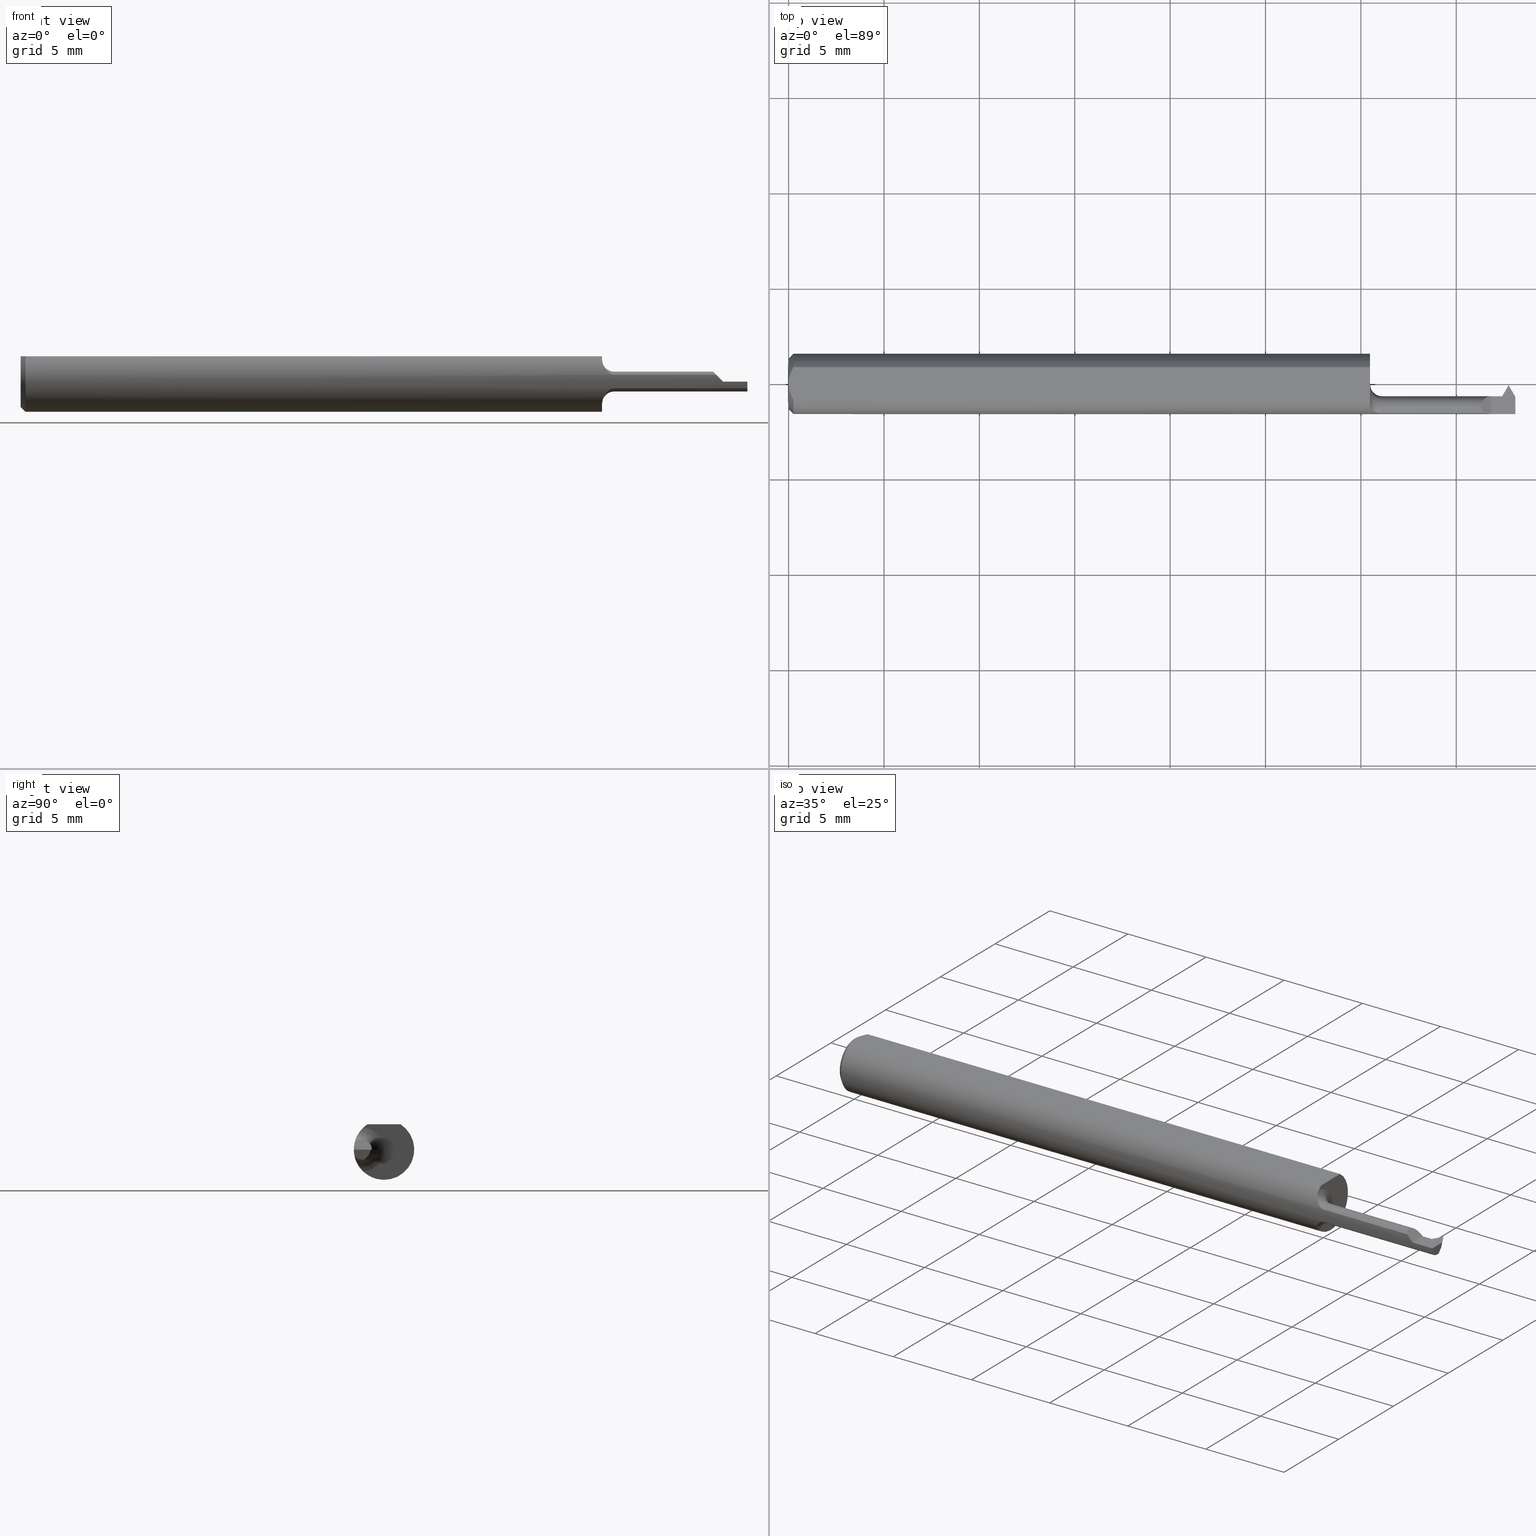
[diagram: canonical four-view strip — front | top / right | iso, engineering-drawing reading convention]
A machine part, canonical four-view strip (front | top / right | iso — engineering-drawing reading convention). The complete STEP part file that produces these views, byte-faithful:
ISO-10303-21;
HEADER;
FILE_DESCRIPTION (( 'STEP AP203' ),
    '1' );
FILE_NAME ('230025-TT060250.STEP',
    '2025-04-25T23:28:22',
    ( '' ),
    ( '' ),
    'SwSTEP 2.0',
    'SolidWorks 2024',
    '' );
FILE_SCHEMA (( 'CONFIG_CONTROL_DESIGN' ));
ENDSEC;

DATA;
#1 = CARTESIAN_POINT ( 'NONE',  ( 1.200000000000000178, -0.04585000000000002962, 0.000000000000000000 ) ) ;
#2 = ORIENTED_EDGE ( 'NONE', *, *, #334, .T. ) ;
#3 = AXIS2_PLACEMENT_3D ( 'NONE', #403, #567, #546 ) ;
#4 = CC_DESIGN_APPROVAL ( #176, ( #696 ) ) ;
#5 = DIRECTION ( 'NONE',  ( 0.000000000000000000, 0.000000000000000000, -1.000000000000000000 ) ) ;
#6 = CARTESIAN_POINT ( 'NONE',  ( 0.000000000000000000, 0.000000000000000000, 0.000000000000000000 ) ) ;
#7 = VERTEX_POINT ( 'NONE', #793 ) ;
#8 = EDGE_CURVE ( 'NONE', #274, #718, #284, .T. ) ;
#9 =( BOUNDED_CURVE ( )  B_SPLINE_CURVE ( 3, ( #364, #112, #440, #378 ),
 .UNSPECIFIED., .F., .T. ) 
 B_SPLINE_CURVE_WITH_KNOTS ( ( 4, 4 ),
 ( 0.000000000000000000, 1.570796326794895670 ),
 .UNSPECIFIED. ) 
 CURVE ( )  GEOMETRIC_REPRESENTATION_ITEM ( )  RATIONAL_B_SPLINE_CURVE ( ( 1.000000000000000000, 0.8047378541243652705, 0.8047378541243652705, 1.000000000000000000 ) ) 
 REPRESENTATION_ITEM ( '' )  );
#10 = DIRECTION ( 'NONE',  ( 0.000000000000000000, -1.000000000000000000, 0.000000000000000000 ) ) ;
#11 = FACE_OUTER_BOUND ( 'NONE', #121, .T. ) ;
#12 = VERTEX_POINT ( 'NONE', #287 ) ;
#13 = CARTESIAN_POINT ( 'NONE',  ( 1.221292961278814149, -0.06073604143947843731, 0.01409452979925066192 ) ) ;
#14 = EDGE_LOOP ( 'NONE', ( #353, #314, #460, #407 ) ) ;
#15 = ADVANCED_FACE ( 'NONE', ( #90 ), #149, .T. ) ;
#16 = EDGE_CURVE ( 'NONE', #492, #467, #433, .T. ) ;
#17 = AXIS2_PLACEMENT_3D ( 'NONE', #423, #670, #415 ) ;
#18 = CARTESIAN_POINT ( 'NONE',  ( 1.217834430527526601, -0.06037265636804074048, 0.01573558416171080485 ) ) ;
#19 = EDGE_CURVE ( 'NONE', #776, #720, #819, .T. ) ;
#20 = CARTESIAN_POINT ( 'NONE',  ( 1.500000000000000222, -0.04585000000000002962, 0.000000000000000000 ) ) ;
#21 = EDGE_LOOP ( 'NONE', ( #362, #582, #781, #357, #709 ) ) ;
#22 = DIRECTION ( 'NONE',  ( 0.1120836188533305133, 0.000000000000000000, -0.9936987784961504033 ) ) ;
#23 = ORIENTED_EDGE ( 'NONE', *, *, #428, .T. ) ;
#24 = ORIENTED_EDGE ( 'NONE', *, *, #42, .F. ) ;
#25 = EDGE_CURVE ( 'NONE', #416, #233, #599, .T. ) ;
#26 = DIRECTION ( 'NONE',  ( -0.000000000000000000, 1.000000000000000000, 1.224646799147353207E-16 ) ) ;
#27 = AXIS2_PLACEMENT_3D ( 'NONE', #83, #532, #591 ) ;
#28 = VECTOR ( 'NONE', #356, 39.37007874015748143 ) ;
#29 = AXIS2_PLACEMENT_3D ( 'NONE', #241, #682, #107 ) ;
#30 = CARTESIAN_POINT ( 'NONE',  ( 1.500000000000000222, 0.000000000000000000, 0.000000000000000000 ) ) ;
#31 = FACE_OUTER_BOUND ( 'NONE', #634, .T. ) ;
#32 =( BOUNDED_CURVE ( )  B_SPLINE_CURVE ( 3, ( #646, #327, #450, #130 ),
 .UNSPECIFIED., .F., .T. ) 
 B_SPLINE_CURVE_WITH_KNOTS ( ( 4, 4 ),
 ( 4.712388980384689674, 4.940414924607588354 ),
 .UNSPECIFIED. ) 
 CURVE ( )  GEOMETRIC_REPRESENTATION_ITEM ( )  RATIONAL_B_SPLINE_CURVE ( ( 1.000000000000000000, 0.9956717057219215405, 0.9956717057219215405, 1.000000000000000000 ) ) 
 REPRESENTATION_ITEM ( '' )  );
#33 = ORIENTED_EDGE ( 'NONE', *, *, #334, .F. ) ;
#34 = EDGE_CURVE ( 'NONE', #706, #73, #618, .T. ) ;
#35 =( LENGTH_UNIT ( ) NAMED_UNIT ( * ) SI_UNIT ( $, .METRE. ) );
#36 = FACE_OUTER_BOUND ( 'NONE', #279, .T. ) ;
#37 = LINE ( 'NONE', #371, #783 ) ;
#38 = DIRECTION ( 'NONE',  ( -1.000000000000000000, -0.000000000000000000, -0.000000000000000000 ) ) ;
#39 = CARTESIAN_POINT ( 'NONE',  ( 1.475386358967280653, -0.03736748372183578554, -0.02050000000000005290 ) ) ;
#40 = ORIENTED_EDGE ( 'NONE', *, *, #25, .T. ) ;
#41 = APPROVAL ( #573, 'UNSPECIFIED' ) ;
#42 = EDGE_CURVE ( 'NONE', #61, #467, #635, .T. ) ;
#43 = DIRECTION ( 'NONE',  ( -1.000000000000000000, -0.000000000000000000, -0.000000000000000000 ) ) ;
#44 = VECTOR ( 'NONE', #509, 39.37007874015748143 ) ;
#45 = VECTOR ( 'NONE', #263, 39.37007874015748143 ) ;
#46 = CARTESIAN_POINT ( 'NONE',  ( 0.000000000000000000, 0.000000000000000000, 0.05234999999999997294 ) ) ;
#47 = EDGE_CURVE ( 'NONE', #706, #507, #789, .T. ) ;
#48 = CARTESIAN_POINT ( 'NONE',  ( 1.474695953239303581, -0.03029403366202066891, -0.01581818553756960538 ) ) ;
#49 = ORIENTED_EDGE ( 'NONE', *, *, #651, .F. ) ;
#50 = PERSON_AND_ORGANIZATION_ROLE ( 'classification_officer' ) ;
#51 = CARTESIAN_POINT ( 'NONE',  ( 1.500000000000000222, 0.000000000000000000, 0.000000000000000000 ) ) ;
#52 = LINE ( 'NONE', #228, #650 ) ;
#53 = ORIENTED_EDGE ( 'NONE', *, *, #786, .T. ) ;
#54 = PERSON_AND_ORGANIZATION ( #65, #488 ) ;
#55 = CARTESIAN_POINT ( 'NONE',  ( 1.475306449763415850, -0.03388533903510557166, -0.02050000000000012923 ) ) ;
#56 = CARTESIAN_POINT ( 'NONE',  ( 1.475581018059172633, -0.04585000000000002962, -0.02050000000000003555 ) ) ;
#57 = ORIENTED_EDGE ( 'NONE', *, *, #220, .T. ) ;
#58 = CARTESIAN_POINT ( 'NONE',  ( 1.450000000000000178, -0.06235000000000005121, 6.123233995736799470E-18 ) ) ;
#59 = AXIS2_PLACEMENT_3D ( 'NONE', #606, #732, #81 ) ;
#60 = DIRECTION ( 'NONE',  ( 0.000000000000000000, 0.000000000000000000, 1.000000000000000000 ) ) ;
#61 = VERTEX_POINT ( 'NONE', #798 ) ;
#62 = CARTESIAN_POINT ( 'NONE',  ( 1.486483381705664852, -0.007390262258351558769, -0.01000000000000002970 ) ) ;
#63 = DIRECTION ( 'NONE',  ( 0.000000000000000000, 0.3768974211598614676, 0.9262550048032377470 ) ) ;
#64 = ORIENTED_EDGE ( 'NONE', *, *, #141, .T. ) ;
#65 = PERSON ( 'UNSPECIFIED', 'UNSPECIFIED', 'UNSPECIFIED', ('UNSPECIFIED'), ('UNSPECIFIED'), ('UNSPECIFIED') ) ;
#66 = COORDINATED_UNIVERSAL_TIME_OFFSET ( 8, 0, .BEHIND. ) ;
#67 = FACE_OUTER_BOUND ( 'NONE', #333, .T. ) ;
#68 = CARTESIAN_POINT ( 'NONE',  ( 1.200000000000000400, -0.04274258451472193188, -0.04539376575039631712 ) ) ;
#69 = ORIENTED_EDGE ( 'NONE', *, *, #428, .F. ) ;
#70 = CARTESIAN_POINT ( 'NONE',  ( 1.486500000000000155, -0.003350000000000004884, 0.000000000000000000 ) ) ;
#71 = PLANE ( 'NONE',  #285 ) ;
#72 = ADVANCED_FACE ( 'NONE', ( #31 ), #751, .F. ) ;
#73 = VERTEX_POINT ( 'NONE', #480 ) ;
#74 = VECTOR ( 'NONE', #729, 39.37007874015748143 ) ;
#75 = AXIS2_PLACEMENT_3D ( 'NONE', #647, #451, #131 ) ;
#76 = LINE ( 'NONE', #250, #44 ) ;
#77 = PLANE ( 'NONE',  #111 ) ;
#78 = VERTEX_POINT ( 'NONE', #360 ) ;
#79 = CARTESIAN_POINT ( 'NONE',  ( 1.200908254586501078, -0.05074957136629033166, 0.03693611459846564415 ) ) ;
#80 = EDGE_CURVE ( 'NONE', #776, #817, #675, .T. ) ;
#81 = DIRECTION ( 'NONE',  ( 0.000000000000000000, 0.000000000000000000, -1.000000000000000000 ) ) ;
#82 = ORIENTED_EDGE ( 'NONE', *, *, #194, .F. ) ;
#83 = CARTESIAN_POINT ( 'NONE',  ( 1.225000000000000089, -0.04585000000000002962, 0.000000000000000000 ) ) ;
#84 = DIRECTION ( 'NONE',  ( 0.000000000000000000, 0.000000000000000000, 1.000000000000000000 ) ) ;
#85 = CLOSED_SHELL ( 'NONE', ( #185, #622, #72, #425, #304, #224, #577, #691, #457, #697, #370, #642, #667, #402, #258, #315, #15, #611, #561, #493, #254, #521, #547, #400, #777 ) ) ;
#86 = APPROVAL_PERSON_ORGANIZATION ( #172, #291, #498 ) ;
#87 = CARTESIAN_POINT ( 'NONE',  ( 1.473972926476223799, -0.02738452299423695113, -0.009999999999999849287 ) ) ;
#88 = DIRECTION ( 'NONE',  ( 0.000000000000000000, 0.000000000000000000, 1.000000000000000000 ) ) ;
#89 = ORIENTED_EDGE ( 'NONE', *, *, #280, .F. ) ;
#90 = FACE_OUTER_BOUND ( 'NONE', #531, .T. ) ;
#91 = CARTESIAN_POINT ( 'NONE',  ( 1.211997782843084126, -0.05910352463981074361, -0.01998087697867563864 ) ) ;
#92 = VERTEX_POINT ( 'NONE', #369 ) ;
#93 = EDGE_CURVE ( 'NONE', #692, #61, #815, .T. ) ;
#94 =( BOUNDED_CURVE ( )  B_SPLINE_CURVE ( 3, ( #458, #711, #312, #126 ),
 .UNSPECIFIED., .F., .T. ) 
 B_SPLINE_CURVE_WITH_KNOTS ( ( 4, 4 ),
 ( 1.169370598836200648, 1.570796326794896780 ),
 .UNSPECIFIED. ) 
 CURVE ( )  GEOMETRIC_REPRESENTATION_ITEM ( )  RATIONAL_B_SPLINE_CURVE ( ( 1.000000000000000000, 0.9866164697472197265, 0.9866164697472197265, 1.000000000000000000 ) ) 
 REPRESENTATION_ITEM ( '' )  );
#95 = VECTOR ( 'NONE', #513, 39.37007874015748143 ) ;
#96 = CARTESIAN_POINT ( 'NONE',  ( 1.200911592396175731, -0.05077305230828149663, -0.03691063460847186090 ) ) ;
#97 = ORIENTED_EDGE ( 'NONE', *, *, #824, .T. ) ;
#98 = CARTESIAN_POINT ( 'NONE',  ( 0.009999999999999887451, 0.03386738844375224849, 0.05234999999999997294 ) ) ;
#99 = CARTESIAN_POINT ( 'NONE',  ( 1.225000000000000089, -0.04585000000000002962, 0.000000000000000000 ) ) ;
#100 = EDGE_CURVE ( 'NONE', #12, #140, #505, .T. ) ;
#101 = EDGE_CURVE ( 'NONE', #679, #92, #628, .T. ) ;
#102 = FACE_OUTER_BOUND ( 'NONE', #452, .T. ) ;
#103 = EDGE_CURVE ( 'NONE', #695, #757, #569, .T. ) ;
#104 = DIRECTION ( 'NONE',  ( 0.000000000000000000, 0.000000000000000000, 1.000000000000000000 ) ) ;
#105 = DIRECTION ( 'NONE',  ( 1.000000000000000000, -0.000000000000000000, -0.000000000000000000 ) ) ;
#106 = UNCERTAINTY_MEASURE_WITH_UNIT (LENGTH_MEASURE( 1.000000000000000082E-05 ), #336, 'distance_accuracy_value', 'NONE');
#107 = DIRECTION ( 'NONE',  ( 0.000000000000000000, 0.000000000000000000, -1.000000000000000000 ) ) ;
#108 = ORIENTED_EDGE ( 'NONE', *, *, #759, .T. ) ;
#109 = COORDINATED_UNIVERSAL_TIME_OFFSET ( 8, 0, .BEHIND. ) ;
#110 = TOROIDAL_SURFACE ( 'NONE', #27, 0.04549999999999999878, 0.02499999999999993894 ) ;
#111 = AXIS2_PLACEMENT_3D ( 'NONE', #698, #257, #394 ) ;
#112 = CARTESIAN_POINT ( 'NONE',  ( 1.429499999999999771, -0.03384137802864845695, 0.02050000000000004596 ) ) ;
#113 = CARTESIAN_POINT ( 'NONE',  ( 1.485516618294334901, -0.01620080838571287887, -0.02050000000000002862 ) ) ;
#114 = ORIENTED_EDGE ( 'NONE', *, *, #489, .T. ) ;
#115 = DIRECTION ( 'NONE',  ( 1.000000000000000000, 0.000000000000000000, 0.000000000000000000 ) ) ;
#116 = CARTESIAN_POINT ( 'NONE',  ( 1.200000000000000400, -0.04274258451472193188, 0.04539376575039631712 ) ) ;
#117 = LINE ( 'NONE', #174, #583 ) ;
#118 = ORIENTED_EDGE ( 'NONE', *, *, #42, .T. ) ;
#119 = LINE ( 'NONE', #239, #735 ) ;
#120 = PLANE ( 'NONE',  #75 ) ;
#121 = EDGE_LOOP ( 'NONE', ( #464, #53, #559, #2, #471, #69, #794, #639, #733, #668, #688, #475, #340, #427, #754 ) ) ;
#122 = PRODUCT_RELATED_PRODUCT_CATEGORY ( 'detail', '', ( #737 ) ) ;
#123 = DATE_AND_TIME ( #443, #449 ) ;
#124 = B_SPLINE_CURVE_WITH_KNOTS ( 'NONE', 3,
 ( #408, #530, #534, #272, #655, #345 ),
 .UNSPECIFIED., .F., .F.,
 ( 4, 2, 4 ),
 ( 0.002189598257423874383, 0.002641492532680540361, 0.003093386807937206339 ),
 .UNSPECIFIED. ) ;
#125 = VECTOR ( 'NONE', #715, 39.37007874015748854 ) ;
#126 = CARTESIAN_POINT ( 'NONE',  ( 1.470951421547187499, -0.02534999999999999060, 0.000000000000000000 ) ) ;
#127 = CARTESIAN_POINT ( 'NONE',  ( 0.009999999999999887451, 0.000000000000000000, -0.06235000000000000264 ) ) ;
#128 = ORIENTED_EDGE ( 'NONE', *, *, #19, .F. ) ;
#129 = APPROVAL_ROLE ( '' ) ;
#130 = CARTESIAN_POINT ( 'NONE',  ( 1.435905470200741219, -0.06073604143947651524, 0.01409452979925868675 ) ) ;
#131 = DIRECTION ( 'NONE',  ( 0.4999999999999912292, 0.8660254037844437036, 0.000000000000000000 ) ) ;
#132 = VERTEX_POINT ( 'NONE', #374 ) ;
#133 = EDGE_CURVE ( 'NONE', #657, #92, #550, .T. ) ;
#134 = LINE ( 'NONE', #189, #700 ) ;
#135 = DIRECTION ( 'NONE',  ( -1.000000000000000000, -0.000000000000000000, -0.000000000000000000 ) ) ;
#136 = ORIENTED_EDGE ( 'NONE', *, *, #16, .F. ) ;
#137 = CARTESIAN_POINT ( 'NONE',  ( 1.450000000000000178, -0.2500000000000000555, 6.123233995736799470E-18 ) ) ;
#138 = AXIS2_PLACEMENT_3D ( 'NONE', #383, #637, #22 ) ;
#139 = FACE_OUTER_BOUND ( 'NONE', #740, .T. ) ;
#140 = VERTEX_POINT ( 'NONE', #55 ) ;
#141 = EDGE_CURVE ( 'NONE', #527, #7, #119, .T. ) ;
#142 = CARTESIAN_POINT ( 'NONE',  ( -3.937007874019685528E-05, -0.007390262258351511931, -0.01000000000000000021 ) ) ;
#143 = CARTESIAN_POINT ( 'NONE',  ( 1.200000000000000400, -0.04274258451472193188, -0.04539376575039631712 ) ) ;
#144 = VERTEX_POINT ( 'NONE', #693 ) ;
#145 = FACE_OUTER_BOUND ( 'NONE', #376, .T. ) ;
#146 = VERTEX_POINT ( 'NONE', #184 ) ;
#147 = CARTESIAN_POINT ( 'NONE',  ( 1.211982382220401888, -0.05909843708157583309, 0.01999602411377916777 ) ) ;
#148 = EDGE_LOOP ( 'NONE', ( #812, #414, #197, #320 ) ) ;
#149 = CONICAL_SURFACE ( 'NONE', #192, 0.05235000000000033377, 0.7853981633974376209 ) ;
#150 = EDGE_LOOP ( 'NONE', ( #592, #211, #324, #390, #669 ) ) ;
#151 = APPROVAL_PERSON_ORGANIZATION ( #703, #41, #129 ) ;
#152 = DIRECTION ( 'NONE',  ( -1.000000000000000000, -0.000000000000000000, -0.000000000000000000 ) ) ;
#153 = ORIENTED_EDGE ( 'NONE', *, *, #601, .F. ) ;
#154 = ORIENTED_EDGE ( 'NONE', *, *, #601, .T. ) ;
#155 = PLANE ( 'NONE',  #17 ) ;
#156 = EDGE_CURVE ( 'NONE', #201, #242, #169, .T. ) ;
#157 = ORIENTED_EDGE ( 'NONE', *, *, #133, .F. ) ;
#158 = CARTESIAN_POINT ( 'NONE',  ( 1.200000000000000178, -0.04381837713272508650, -0.04438080381310843120 ) ) ;
#159 = ORIENTED_EDGE ( 'NONE', *, *, #8, .F. ) ;
#160 = VECTOR ( 'NONE', #755, 39.37007874015748854 ) ;
#161 = VECTOR ( 'NONE', #387, 39.37007874015748143 ) ;
#162 = APPLICATION_PROTOCOL_DEFINITION ( 'international standard', 'config_control_design', 1994, #780 ) ;
#163 = EDGE_CURVE ( 'NONE', #372, #757, #810, .T. ) ;
#164 = CARTESIAN_POINT ( 'NONE',  ( 1.500000000000000222, -0.03080173189065360181, -0.009999999999999849287 ) ) ;
#165 = LINE ( 'NONE', #438, #328 ) ;
#166 = EDGE_LOOP ( 'NONE', ( #337, #82 ) ) ;
#167 = EDGE_CURVE ( 'NONE', #692, #535, #9, .T. ) ;
#168 = CARTESIAN_POINT ( 'NONE',  ( 1.200211781816272305, -0.04585000000000021697, -0.04225281055740977287 ) ) ;
#169 = LINE ( 'NONE', #164, #178 ) ;
#170 = PLANE ( 'NONE',  #662 ) ;
#171 = ORIENTED_EDGE ( 'NONE', *, *, #813, .T. ) ;
#172 = PERSON_AND_ORGANIZATION ( #65, #488 ) ;
#173 = DIRECTION ( 'NONE',  ( -1.000000000000000000, 0.000000000000000000, -0.000000000000000000 ) ) ;
#174 = CARTESIAN_POINT ( 'NONE',  ( 1.485516618294334679, -0.007390262258346467356, -0.009999999999993987657 ) ) ;
#175 = EDGE_LOOP ( 'NONE', ( #171, #773, #114, #501 ) ) ;
#176 = APPROVAL ( #641, 'UNSPECIFIED' ) ;
#177 = PERSON_AND_ORGANIZATION_ROLE ( 'creator' ) ;
#178 = VECTOR ( 'NONE', #235, 39.37007874015748854 ) ;
#179 = VECTOR ( 'NONE', #686, 39.37007874015748143 ) ;
#180 = CARTESIAN_POINT ( 'NONE',  ( 1.500000000000000222, -0.03080173189065360181, -0.009999999999999849287 ) ) ;
#181 = DIRECTION ( 'NONE',  ( 0.000000000000000000, 1.000000000000000000, 0.000000000000000000 ) ) ;
#182 = ORIENTED_EDGE ( 'NONE', *, *, #725, .F. ) ;
#183 = DATE_AND_TIME ( #508, #701 ) ;
#184 = CARTESIAN_POINT ( 'NONE',  ( 1.486483381705665741, -0.01620080838571287193, -0.02050000000000002862 ) ) ;
#185 = ADVANCED_FACE ( 'NONE', ( #36 ), #566, .T. ) ;
#186 = CARTESIAN_POINT ( 'NONE',  ( 1.486000000000000210, -0.006553020584689755491, -0.009999999999999849287 ) ) ;
#187 = ORIENTED_EDGE ( 'NONE', *, *, #631, .T. ) ;
#188 = APPROVAL_DATE_TIME ( #316, #176 ) ;
#189 = CARTESIAN_POINT ( 'NONE',  ( 1.671951421547187788, -0.04585000000000002962, -0.02050000000000002168 ) ) ;
#190 = FACE_OUTER_BOUND ( 'NONE', #615, .T. ) ;
#191 = EDGE_LOOP ( 'NONE', ( #268, #182, #157, #484, #823, #299, #515, #587 ) ) ;
#192 = AXIS2_PLACEMENT_3D ( 'NONE', #659, #664, #543 ) ;
#193 = DIRECTION ( 'NONE',  ( -1.000000000000000000, -0.000000000000000000, -0.000000000000000000 ) ) ;
#194 = EDGE_CURVE ( 'NONE', #78, #657, #424, .T. ) ;
#195 = AXIS2_PLACEMENT_3D ( 'NONE', #30, #43, #104 ) ;
#196 = CARTESIAN_POINT ( 'NONE',  ( 1.429499999999999771, -0.04585000000000002962, 0.02050000000000004596 ) ) ;
#197 = ORIENTED_EDGE ( 'NONE', *, *, #395, .F. ) ;
#198 = EDGE_CURVE ( 'NONE', #274, #757, #517, .T. ) ;
#199 = FACE_OUTER_BOUND ( 'NONE', #481, .T. ) ;
#200 = CARTESIAN_POINT ( 'NONE',  ( 1.429499999999999771, -0.05156198388258659976, 0.02050000000000004596 ) ) ;
#201 = VERTEX_POINT ( 'NONE', #180 ) ;
#202 = CARTESIAN_POINT ( 'NONE',  ( 1.225000000000000089, -0.04585000000000002962, 0.04549999999999999878 ) ) ;
#203 = CARTESIAN_POINT ( 'NONE',  ( 1.531535333950210465, -0.3079965118900757637, -0.4632393879296261563 ) ) ;
#204 = ORIENTED_EDGE ( 'NONE', *, *, #395, .T. ) ;
#205 = PLANE ( 'NONE',  #804 ) ;
#206 = AXIS2_PLACEMENT_3D ( 'NONE', #51, #173, #828 ) ;
#207 = LINE ( 'NONE', #653, #355 ) ;
#208 = ORIENTED_EDGE ( 'NONE', *, *, #243, .T. ) ;
#209 = VECTOR ( 'NONE', #678, 39.37007874015748143 ) ;
#210 = CARTESIAN_POINT ( 'NONE',  ( 1.225000000000000089, -0.04585000000000002962, 0.000000000000000000 ) ) ;
#211 = ORIENTED_EDGE ( 'NONE', *, *, #317, .F. ) ;
#212 = CARTESIAN_POINT ( 'NONE',  ( 1.473972926476223799, -0.02738452299423695113, -0.009999999999999849287 ) ) ;
#213 = DIRECTION ( 'NONE',  ( -1.000000000000000000, -0.000000000000000000, -0.000000000000000000 ) ) ;
#214 = DIRECTION ( 'NONE',  ( -0.4999999999999993894, -0.8660254037844391517, 0.000000000000000000 ) ) ;
#215 = DIRECTION ( 'NONE',  ( -1.000000000000000000, -0.000000000000000000, -0.000000000000000000 ) ) ;
#216 = VECTOR ( 'NONE', #742, 39.37007874015748854 ) ;
#217 = ORIENTED_EDGE ( 'NONE', *, *, #465, .T. ) ;
#218 = LOCAL_TIME ( 16, 28, 22.00000000000000000, #748 ) ;
#219 = CC_DESIGN_SECURITY_CLASSIFICATION ( #341, ( #229 ) ) ;
#220 = EDGE_CURVE ( 'NONE', #233, #497, #545, .T. ) ;
#221 = DIRECTION ( 'NONE',  ( -1.000000000000000000, -0.000000000000000000, -0.000000000000000000 ) ) ;
#222 = CARTESIAN_POINT ( 'NONE',  ( 1.545688868235869595, -0.1187477191428599754, -0.02050000000000001821 ) ) ;
#223 = DIRECTION ( 'NONE',  ( 0.000000000000000000, 0.000000000000000000, -1.000000000000000000 ) ) ;
#224 = ADVANCED_FACE ( 'NONE', ( #485 ), #420, .F. ) ;
#225 = LENGTH_MEASURE_WITH_UNIT ( LENGTH_MEASURE( 0.02539999999999999897 ), #35 );
#226 = DIMENSIONAL_EXPONENTS ( 1.000000000000000000, 0.000000000000000000, 0.000000000000000000, 0.000000000000000000, 0.000000000000000000, 0.000000000000000000, 0.000000000000000000 ) ;
#227 = DIRECTION ( 'NONE',  ( -0.001540819590690688983, 0.3746061487342010610, 0.9271827539409469576 ) ) ;
#228 = CARTESIAN_POINT ( 'NONE',  ( 1.500000000000000222, -8.354964170273410112E-19, -0.02050000000000002168 ) ) ;
#229 = PRODUCT_DEFINITION_FORMATION_WITH_SPECIFIED_SOURCE ( 'ANY', '', #737, .NOT_KNOWN. ) ;
#230 = CARTESIAN_POINT ( 'NONE',  ( 1.217858627438156427, -0.06037617897742812711, -0.01572192996331089887 ) ) ;
#231 = DIRECTION ( 'NONE',  ( 1.000000000000000000, 0.000000000000000000, 0.000000000000000000 ) ) ;
#232 = CYLINDRICAL_SURFACE ( 'NONE', #275, 0.02050000000000004596 ) ;
#233 = VERTEX_POINT ( 'NONE', #386 ) ;
#234 = LINE ( 'NONE', #612, #393 ) ;
#235 = DIRECTION ( 'NONE',  ( 0.000000000000000000, -0.6427876096865403621, -0.7660444431189770143 ) ) ;
#236 = DIRECTION ( 'NONE',  ( 0.000000000000000000, -1.000000000000000000, 4.075592278182146697E-17 ) ) ;
#237 = ORIENTED_EDGE ( 'NONE', *, *, #787, .T. ) ;
#238 = APPROVAL_STATUS ( 'not_yet_approved' ) ;
#239 = CARTESIAN_POINT ( 'NONE',  ( 1.500000000000000222, 0.000000000000000000, 0.000000000000000000 ) ) ;
#240 = B_SPLINE_CURVE_WITH_KNOTS ( 'NONE', 3,
 ( #168, #419, #158, #143 ),
 .UNSPECIFIED., .F., .F.,
 ( 4, 4 ),
 ( 0.001112411154576747234, 0.001224254429530157243 ),
 .UNSPECIFIED. ) ;
#241 = CARTESIAN_POINT ( 'NONE',  ( 1.200000000000000400, 0.000000000000000000, 0.000000000000000000 ) ) ;
#242 = VERTEX_POINT ( 'NONE', #832 ) ;
#243 = EDGE_CURVE ( 'NONE', #350, #527, #588, .T. ) ;
#244 = APPROVAL_DATE_TIME ( #765, #291 ) ;
#245 = VECTOR ( 'NONE', #680, 39.37007874015747433 ) ;
#246 = CARTESIAN_POINT ( 'NONE',  ( 1.200000000000000178, -0.04585000000000002962, 0.02050000000000004596 ) ) ;
#247 = DIRECTION ( 'NONE',  ( -0.9799247046208295897, 0.000000000000000000, 0.1993679344171976342 ) ) ;
#248 = ORIENTED_EDGE ( 'NONE', *, *, #100, .T. ) ;
#249 = APPLICATION_PROTOCOL_DEFINITION ( 'international standard', 'config_control_design', 1994, #825 ) ;
#250 = CARTESIAN_POINT ( 'NONE',  ( 0.000000000000000000, -0.03386738844375224849, 0.05234999999999997294 ) ) ;
#251 = LINE ( 'NONE', #510, #296 ) ;
#252 = ORIENTED_EDGE ( 'NONE', *, *, #19, .T. ) ;
#253 = CC_DESIGN_DATE_AND_TIME_ASSIGNMENT ( #627, #560, ( #696 ) ) ;
#254 = ADVANCED_FACE ( 'NONE', ( #67 ), #778, .T. ) ;
#255 = PERSON_AND_ORGANIZATION ( #65, #488 ) ;
#256 = PLANE ( 'NONE',  #404 ) ;
#257 = DIRECTION ( 'NONE',  ( 0.000000000000000000, -0.9799247046208295897, 0.1993679344171976342 ) ) ;
#258 = ADVANCED_FACE ( 'NONE', ( #269 ), #256, .F. ) ;
#259 = ORIENTED_EDGE ( 'NONE', *, *, #352, .T. ) ;
#260 = AXIS2_PLACEMENT_3D ( 'NONE', #99, #802, #677 ) ;
#261 = LINE ( 'NONE', #142, #95 ) ;
#262 = AXIS2_PLACEMENT_3D ( 'NONE', #319, #463, #332 ) ;
#263 = DIRECTION ( 'NONE',  ( 0.4999999999999913403, 0.8660254037844437036, -0.000000000000000000 ) ) ;
#264 = ORIENTED_EDGE ( 'NONE', *, *, #790, .F. ) ;
#265 = CARTESIAN_POINT ( 'NONE',  ( 1.200000000000000178, -0.02534999999999999060, 3.673940397442077371E-17 ) ) ;
#266 = EDGE_CURVE ( 'NONE', #817, #61, #673, .T. ) ;
#267 = CARTESIAN_POINT ( 'NONE',  ( 1.473739173235127708, -0.02697965050422496472, -0.008009988134030069165 ) ) ;
#268 = ORIENTED_EDGE ( 'NONE', *, *, #759, .F. ) ;
#269 = FACE_OUTER_BOUND ( 'NONE', #191, .T. ) ;
#270 = PLANE ( 'NONE',  #434 ) ;
#271 = ORIENTED_EDGE ( 'NONE', *, *, #786, .F. ) ;
#272 = CARTESIAN_POINT ( 'NONE',  ( 0.001055043921632921322, -0.01186408073210964975, 0.05234999999999997988 ) ) ;
#273 = AXIS2_PLACEMENT_3D ( 'NONE', #533, #605, #349 ) ;
#274 = VERTEX_POINT ( 'NONE', #322 ) ;
#275 = AXIS2_PLACEMENT_3D ( 'NONE', #307, #293, #298 ) ;
#276 = FACE_OUTER_BOUND ( 'NONE', #388, .T. ) ;
#277 = DIRECTION ( 'NONE',  ( 1.000000000000000000, 0.000000000000000000, 0.000000000000000000 ) ) ;
#278 = DIRECTION ( 'NONE',  ( -0.7071067811865431318, 0.000000000000000000, -0.7071067811865520136 ) ) ;
#279 = EDGE_LOOP ( 'NONE', ( #303, #347, #24, #576, #724, #283, #626, #511 ) ) ;
#280 = EDGE_CURVE ( 'NONE', #233, #281, #261, .T. ) ;
#281 = VERTEX_POINT ( 'NONE', #62 ) ;
#282 =( NAMED_UNIT ( * ) SI_UNIT ( $, .STERADIAN. ) SOLID_ANGLE_UNIT ( ) );
#283 = ORIENTED_EDGE ( 'NONE', *, *, #342, .T. ) ;
#284 = CIRCLE ( 'NONE', #795, 0.05235000000000033377 ) ;
#285 = AXIS2_PLACEMENT_3D ( 'NONE', #779, #772, #575 ) ;
#286 = CARTESIAN_POINT ( 'NONE',  ( 1.472798294077828807, -0.02534999999999999060, 0.000000000000000000 ) ) ;
#287 = CARTESIAN_POINT ( 'NONE',  ( 1.475581018059172633, -0.04585000000000002962, -0.02050000000000003555 ) ) ;
#288 = EDGE_CURVE ( 'NONE', #467, #507, #381, .T. ) ;
#289 = CARTESIAN_POINT ( 'NONE',  ( 0.009999999999999887451, 0.03386738844375224849, 0.05234999999999997294 ) ) ;
#290 = LINE ( 'NONE', #186, #685 ) ;
#291 = APPROVAL ( #238, 'UNSPECIFIED' ) ;
#292 = DIRECTION ( 'NONE',  ( 0.000000000000000000, -1.000000000000000000, 0.000000000000000000 ) ) ;
#293 = DIRECTION ( 'NONE',  ( -1.000000000000000000, -0.000000000000000000, -0.000000000000000000 ) ) ;
#294 = ORIENTED_EDGE ( 'NONE', *, *, #763, .F. ) ;
#295 = VECTOR ( 'NONE', #681, 39.37007874015748854 ) ;
#296 = VECTOR ( 'NONE', #323, 39.37007874015748143 ) ;
#297 = CARTESIAN_POINT ( 'NONE',  ( 0.001063697276021325104, 0.01189177144351695990, 0.05234999999999997988 ) ) ;
#298 = DIRECTION ( 'NONE',  ( 0.000000000000000000, 0.000000000000000000, 1.000000000000000000 ) ) ;
#299 = ORIENTED_EDGE ( 'NONE', *, *, #758, .F. ) ;
#300 = CALENDAR_DATE ( 2025, 25, 4 ) ;
#301 = CARTESIAN_POINT ( 'NONE',  ( 1.475684376837079537, -0.05035398955201258325, -0.02050000000000002168 ) ) ;
#302 = CARTESIAN_POINT ( 'NONE',  ( 1.500000000000000222, -0.02673268590218017687, 0.000000000000000000 ) ) ;
#303 = ORIENTED_EDGE ( 'NONE', *, *, #468, .F. ) ;
#304 = ADVANCED_FACE ( 'NONE', ( #199 ), #769, .T. ) ;
#305 = APPROVAL_DATE_TIME ( #183, #41 ) ;
#306 = CARTESIAN_POINT ( 'NONE',  ( 0.000000000000000000, 0.03386738844375224849, 0.05234999999999997294 ) ) ;
#307 = CARTESIAN_POINT ( 'NONE',  ( 1.200000000000000178, -0.04585000000000002962, 0.000000000000000000 ) ) ;
#308 = ORIENTED_EDGE ( 'NONE', *, *, #489, .F. ) ;
#309 = VECTOR ( 'NONE', #152, 39.37007874015748143 ) ;
#310 = DIRECTION ( 'NONE',  ( 0.000000000000000000, 0.000000000000000000, 1.000000000000000000 ) ) ;
#311 = AXIS2_PLACEMENT_3D ( 'NONE', #1, #705, #60 ) ;
#312 = CARTESIAN_POINT ( 'NONE',  ( 1.470389556322883484, -0.02534999999999998019, -0.002761655807752521567 ) ) ;
#313 = CARTESIAN_POINT ( 'NONE',  ( -3.937007874019685528E-05, -0.007390262258351511931, -0.01000000000000000021 ) ) ;
#314 = ORIENTED_EDGE ( 'NONE', *, *, #100, .F. ) ;
#315 = ADVANCED_FACE ( 'NONE', ( #770 ), #205, .T. ) ;
#316 = DATE_AND_TIME ( #300, #821 ) ;
#317 = EDGE_CURVE ( 'NONE', #73, #12, #134, .T. ) ;
#318 = DIRECTION ( 'NONE',  ( -1.000000000000000000, -0.000000000000000000, -0.000000000000000000 ) ) ;
#319 = CARTESIAN_POINT ( 'NONE',  ( 0.000000000000000000, 0.000000000000000000, 0.000000000000000000 ) ) ;
#320 = ORIENTED_EDGE ( 'NONE', *, *, #771, .T. ) ;
#321 = CARTESIAN_POINT ( 'NONE',  ( 0.000000000000000000, 0.000000000000000000, 0.000000000000000000 ) ) ;
#322 = CARTESIAN_POINT ( 'NONE',  ( 0.000000000000000000, 0.000000000000000000, 0.05234999999999997294 ) ) ;
#323 = DIRECTION ( 'NONE',  ( 0.7071067811865550112, 0.000000000000000000, -0.7071067811865400232 ) ) ;
#324 = ORIENTED_EDGE ( 'NONE', *, *, #34, .F. ) ;
#325 = CC_DESIGN_PERSON_AND_ORGANIZATION_ASSIGNMENT ( #255, #814, ( #229 ) ) ;
#326 = AXIS2_PLACEMENT_3D ( 'NONE', #690, #231, #684 ) ;
#327 = CARTESIAN_POINT ( 'NONE',  ( 1.445250564478592015, -0.06235000000000000958, 0.004749435521408015490 ) ) ;
#328 = VECTOR ( 'NONE', #829, 39.37007874015748143 ) ;
#329 = CARTESIAN_POINT ( 'NONE',  ( 1.470951421547187499, -0.02534999999999999060, 0.000000000000000000 ) ) ;
#330 = ORIENTED_EDGE ( 'NONE', *, *, #640, .T. ) ;
#331 = CARTESIAN_POINT ( 'NONE',  ( 1.225000000000000089, -0.04585000000000002962, 0.000000000000000000 ) ) ;
#332 = DIRECTION ( 'NONE',  ( 0.000000000000000000, 0.000000000000000000, -1.000000000000000000 ) ) ;
#333 = EDGE_LOOP ( 'NONE', ( #683, #153, #654, #252 ) ) ;
#334 = EDGE_CURVE ( 'NONE', #343, #144, #32, .T. ) ;
#335 = PLANE ( 'NONE',  #782 ) ;
#336 =( CONVERSION_BASED_UNIT ( 'INCH', #225 ) LENGTH_UNIT ( ) NAMED_UNIT ( #226 ) );
#337 = ORIENTED_EDGE ( 'NONE', *, *, #344, .T. ) ;
#338 = CARTESIAN_POINT ( 'NONE',  ( 1.203374710604616427, -0.05454397503010508658, 0.03079799606398875636 ) ) ;
#339 = AXIS2_PLACEMENT_3D ( 'NONE', #806, #557, #617 ) ;
#340 = ORIENTED_EDGE ( 'NONE', *, *, #548, .F. ) ;
#341 = SECURITY_CLASSIFICATION ( '', '', #368 ) ;
#342 = EDGE_CURVE ( 'NONE', #535, #657, #585, .T. ) ;
#343 = VERTEX_POINT ( 'NONE', #58 ) ;
#344 = EDGE_CURVE ( 'NONE', #78, #657, #94, .T. ) ;
#345 = CARTESIAN_POINT ( 'NONE',  ( 0.000000000000000000, 0.000000000000000000, 0.05234999999999997294 ) ) ;
#346 = EDGE_CURVE ( 'NONE', #343, #535, #522, .T. ) ;
#347 = ORIENTED_EDGE ( 'NONE', *, *, #411, .T. ) ;
#348 = ORIENTED_EDGE ( 'NONE', *, *, #581, .F. ) ;
#349 = DIRECTION ( 'NONE',  ( 0.000000000000000000, 0.000000000000000000, 1.000000000000000000 ) ) ;
#350 = VERTEX_POINT ( 'NONE', #652 ) ;
#351 = CARTESIAN_POINT ( 'NONE',  ( 1.200211781816272305, -0.04585000000000021697, -0.04225281055740977287 ) ) ;
#352 = EDGE_CURVE ( 'NONE', #565, #478, #76, .T. ) ;
#353 = ORIENTED_EDGE ( 'NONE', *, *, #717, .F. ) ;
#354 = AXIS2_PLACEMENT_3D ( 'NONE', #766, #392, #518 ) ;
#355 = VECTOR ( 'NONE', #63, 39.37007874015748143 ) ;
#356 = DIRECTION ( 'NONE',  ( -0.5000000000000042188, 0.8660254037844362651, -3.001275745718274032E-17 ) ) ;
#357 = ORIENTED_EDGE ( 'NONE', *, *, #725, .T. ) ;
#358 = CARTESIAN_POINT ( 'NONE',  ( 1.450000000000000178, -0.02534999999999999060, 3.673940397442077371E-17 ) ) ;
#359 = CARTESIAN_POINT ( 'NONE',  ( 1.203333494524814640, -0.05451804717303847941, -0.03085487378060305930 ) ) ;
#360 = CARTESIAN_POINT ( 'NONE',  ( 1.469321771042962466, -0.02697965050422497166, -0.008009988134030147228 ) ) ;
#361 = DIRECTION ( 'NONE',  ( -1.000000000000000000, -0.000000000000000000, -0.000000000000000000 ) ) ;
#362 = ORIENTED_EDGE ( 'NONE', *, *, #25, .F. ) ;
#363 = CARTESIAN_POINT ( 'NONE',  ( 1.200000000000000400, -0.04274258451472193188, 0.04539376575039631712 ) ) ;
#364 = CARTESIAN_POINT ( 'NONE',  ( 1.429499999999999771, -0.04585000000000002962, 0.02050000000000004596 ) ) ;
#365 = CARTESIAN_POINT ( 'NONE',  ( 1.225000000000000089, -0.04585000000000002962, 0.000000000000000000 ) ) ;
#366 = ORIENTED_EDGE ( 'NONE', *, *, #747, .F. ) ;
#367 = AXIS2_PLACEMENT_3D ( 'NONE', #210, #792, #784 ) ;
#368 = SECURITY_CLASSIFICATION_LEVEL ( 'unclassified' ) ;
#369 = CARTESIAN_POINT ( 'NONE',  ( 1.472798294077828807, -0.02534999999999999060, 0.000000000000000000 ) ) ;
#370 = ADVANCED_FACE ( 'NONE', ( #761 ), #444, .F. ) ;
#371 = CARTESIAN_POINT ( 'NONE',  ( 1.200000000000000400, 0.06235000000000000264, 0.05234999999999997294 ) ) ;
#372 = VERTEX_POINT ( 'NONE', #470 ) ;
#373 = PERSON_AND_ORGANIZATION ( #65, #488 ) ;
#374 = CARTESIAN_POINT ( 'NONE',  ( 1.225000000000000089, -0.06073604143947652217, 0.01409452979925869022 ) ) ;
#375 = CARTESIAN_POINT ( 'NONE',  ( 1.486496470769701705, -0.004208031256919916863, -0.002123701883822748035 ) ) ;
#376 = EDGE_LOOP ( 'NONE', ( #217, #830, #540, #40 ) ) ;
#377 = EDGE_CURVE ( 'NONE', #565, #274, #124, .T. ) ;
#378 = CARTESIAN_POINT ( 'NONE',  ( 1.450000000000000178, -0.02534999999999999060, 3.673940397442077371E-17 ) ) ;
#379 = DIRECTION ( 'NONE',  ( 0.000000000000000000, 0.000000000000000000, -1.000000000000000000 ) ) ;
#380 = ORIENTED_EDGE ( 'NONE', *, *, #198, .T. ) ;
#381 = CIRCLE ( 'NONE', #593, 0.02050000000000005984 ) ;
#382 = CIRCLE ( 'NONE', #539, 0.06235000000000000264 ) ;
#383 = CARTESIAN_POINT ( 'NONE',  ( 1.477508393106610640, -1.476818358042266910, 0.2535462904163677256 ) ) ;
#384 = ORIENTED_EDGE ( 'NONE', *, *, #266, .F. ) ;
#385 = PERSON_AND_ORGANIZATION_ROLE ( 'creator' ) ;
#386 = CARTESIAN_POINT ( 'NONE',  ( 1.485516618294335345, -0.007390262258350952483, -0.009999999999999849287 ) ) ;
#387 = DIRECTION ( 'NONE',  ( -0.1073577180708720630, 0.5233600211179563200, 0.8453216007331336712 ) ) ;
#388 = EDGE_LOOP ( 'NONE', ( #308, #645, #208, #723 ) ) ;
#389 = CARTESIAN_POINT ( 'NONE',  ( 1.435905470200741219, -0.06073604143947651524, 0.01409452979925868675 ) ) ;
#390 = ORIENTED_EDGE ( 'NONE', *, *, #47, .T. ) ;
#391 = VECTOR ( 'NONE', #227, 39.37007874015748143 ) ;
#392 = DIRECTION ( 'NONE',  ( 1.000000000000000000, 0.000000000000000000, 0.000000000000000000 ) ) ;
#393 = VECTOR ( 'NONE', #730, 39.37007874015748143 ) ;
#394 = DIRECTION ( 'NONE',  ( 0.000000000000000000, -0.1993679344171976064, -0.9799247046208294787 ) ) ;
#395 = EDGE_CURVE ( 'NONE', #132, #61, #714, .T. ) ;
#396 = EDGE_LOOP ( 'NONE', ( #294, #660, #808, #422, #568, #248 ) ) ;
#397 = FACE_OUTER_BOUND ( 'NONE', #768, .T. ) ;
#398 = ORIENTED_EDGE ( 'NONE', *, *, #198, .F. ) ;
#399 = CC_DESIGN_PERSON_AND_ORGANIZATION_ASSIGNMENT ( #373, #177, ( #696 ) ) ;
#400 = ADVANCED_FACE ( 'NONE', ( #145 ), #663, .T. ) ;
#401 = CARTESIAN_POINT ( 'NONE',  ( 1.200000000000000400, -0.04585000000000002962, 0.000000000000000000 ) ) ;
#402 = ADVANCED_FACE ( 'NONE', ( #721 ), #335, .F. ) ;
#403 = CARTESIAN_POINT ( 'NONE',  ( 1.486500000000000155, -0.003350000000000004884, 0.000000000000000000 ) ) ;
#404 = AXIS2_PLACEMENT_3D ( 'NONE', #643, #453, #462 ) ;
#405 = ORIENTED_EDGE ( 'NONE', *, *, #163, .T. ) ;
#406 = AXIS2_PLACEMENT_3D ( 'NONE', #558, #496, #739 ) ;
#407 = ORIENTED_EDGE ( 'NONE', *, *, #799, .F. ) ;
#408 = CARTESIAN_POINT ( 'NONE',  ( 0.009999999999999887451, -0.03386738844375224849, 0.05234999999999997294 ) ) ;
#409 = DIRECTION ( 'NONE',  ( 0.000000000000000000, 0.000000000000000000, 1.000000000000000000 ) ) ;
#410 = ORIENTED_EDGE ( 'NONE', *, *, #377, .F. ) ;
#411 = EDGE_CURVE ( 'NONE', #12, #467, #728, .T. ) ;
#413 = B_SPLINE_CURVE_WITH_KNOTS ( 'NONE', 3,
 ( #719, #79, #338, #595, #147, #18, #13, #598 ),
 .UNSPECIFIED., .F., .F.,
 ( 4, 2, 2, 4 ),
 ( 0.0001160581919393091247, 0.0006692384458867309174, 0.0009458285728604417120, 0.001222418699834152507 ),
 .UNSPECIFIED. ) ;
#412 = LINE ( 'NONE', #479, #753 ) ;
#414 = ORIENTED_EDGE ( 'NONE', *, *, #93, .T. ) ;
#415 = DIRECTION ( 'NONE',  ( -0.5000000000000042188, 0.8660254037844362651, 0.000000000000000000 ) ) ;
#416 = VERTEX_POINT ( 'NONE', #212 ) ;
#417 = AXIS2_PLACEMENT_3D ( 'NONE', #401, #671, #84 ) ;
#418 = CIRCLE ( 'NONE', #262, 0.05235000000000033377 ) ;
#419 = CARTESIAN_POINT ( 'NONE',  ( 1.200071037177339983, -0.04485988461807983302, -0.04332721932837746426 ) ) ;
#420 = PLANE ( 'NONE',  #206 ) ;
#421 = CARTESIAN_POINT ( 'NONE',  ( 1.225000000000000089, -0.06073604143947652217, -0.01409452979925869022 ) ) ;
#422 = ORIENTED_EDGE ( 'NONE', *, *, #551, .F. ) ;
#423 = CARTESIAN_POINT ( 'NONE',  ( 1.486000000000000210, -0.006553020584689755491, -0.009999999999999849287 ) ) ;
#424 = LINE ( 'NONE', #820, #295 ) ;
#425 = ADVANCED_FACE ( 'NONE', ( #397 ), #110, .F. ) ;
#426 = CARTESIAN_POINT ( 'NONE',  ( 1.473739173235127708, -0.02697965050422496472, -0.008009988134030069165 ) ) ;
#427 = ORIENTED_EDGE ( 'NONE', *, *, #824, .F. ) ;
#428 = EDGE_CURVE ( 'NONE', #817, #132, #413, .T. ) ;
#429 = PERSON_AND_ORGANIZATION ( #65, #488 ) ;
#430 = CARTESIAN_POINT ( 'NONE',  ( 1.200000000000000178, -0.04382395356689964411, 0.04437555306545493822 ) ) ;
#431 = CARTESIAN_POINT ( 'NONE',  ( 1.200211781816272305, -0.04585000000000021697, -0.04225281055740977287 ) ) ;
#432 = ORIENTED_EDGE ( 'NONE', *, *, #551, .T. ) ;
#433 = CIRCLE ( 'NONE', #552, 0.02499999999999993894 ) ;
#434 = AXIS2_PLACEMENT_3D ( 'NONE', #313, #827, #586 ) ;
#435 = SHAPE_DEFINITION_REPRESENTATION ( #610, #495 ) ;
#436 =( BOUNDED_CURVE ( )  B_SPLINE_CURVE ( 3, ( #56, #39, #48, #426 ),
 .UNSPECIFIED., .F., .T. ) 
 B_SPLINE_CURVE_WITH_KNOTS ( ( 4, 4 ),
 ( 3.342305517569140960, 4.511676116405345383 ),
 .UNSPECIFIED. ) 
 CURVE ( )  GEOMETRIC_REPRESENTATION_ITEM ( )  RATIONAL_B_SPLINE_CURVE ( ( 1.000000000000000000, 0.8892572147114448100, 0.8892572147114448100, 1.000000000000000000 ) ) 
 REPRESENTATION_ITEM ( '' )  );
#437 = CARTESIAN_POINT ( 'NONE',  ( 0.004671770759546750584, 0.02323517832780109052, 0.05234999999999998682 ) ) ;
#438 = CARTESIAN_POINT ( 'NONE',  ( 1.200000000000000178, -0.02697965050422496472, -0.008009988134030126411 ) ) ;
#439 = ORIENTED_EDGE ( 'NONE', *, *, #722, .F. ) ;
#440 = CARTESIAN_POINT ( 'NONE',  ( 1.437991378028648626, -0.02534999999999999754, 0.01200862197135159001 ) ) ;
#441 = FACE_OUTER_BOUND ( 'NONE', #150, .T. ) ;
#442 = ORIENTED_EDGE ( 'NONE', *, *, #266, .T. ) ;
#443 = CALENDAR_DATE ( 2025, 25, 4 ) ;
#444 = PLANE ( 'NONE',  #138 ) ;
#445 = CARTESIAN_POINT ( 'NONE',  ( 1.431757722455482718, -0.05680883524211058355, 0.01824227754451746703 ) ) ;
#446 = ORIENTED_EDGE ( 'NONE', *, *, #465, .F. ) ;
#447 = CC_DESIGN_DATE_AND_TIME_ASSIGNMENT ( #123, #743, ( #341 ) ) ;
#448 = APPROVAL_ROLE ( '' ) ;
#449 = LOCAL_TIME ( 16, 28, 22.00000000000000000, #494 ) ;
#450 = CARTESIAN_POINT ( 'NONE',  ( 1.440531964389071051, -0.06180967512810751907, 0.009468035610928925150 ) ) ;
#451 = DIRECTION ( 'NONE',  ( 0.8486396879976056962, -0.4899623523104061906, 0.1993679344171976064 ) ) ;
#452 = EDGE_LOOP ( 'NONE', ( #384, #23, #204 ) ) ;
#453 = DIRECTION ( 'NONE',  ( -1.224646799147359863E-16, 0.000000000000000000, -1.000000000000000000 ) ) ;
#454 = LINE ( 'NONE', #762, #45 ) ;
#455 = ORIENTED_EDGE ( 'NONE', *, *, #377, .T. ) ;
#456 = B_SPLINE_CURVE_WITH_KNOTS ( 'NONE', 3,
 ( #809, #482, #230, #91, #741, #359, #96, #351 ),
 .UNSPECIFIED., .F., .F.,
 ( 4, 2, 2, 4 ),
 ( 1.967541529472493972E-07, 0.0002782503542588971881, 0.0005563039543648472035, 0.001112411154576747234 ),
 .UNSPECIFIED. ) ;
#457 = ADVANCED_FACE ( 'NONE', ( #276 ), #788, .F. ) ;
#458 = CARTESIAN_POINT ( 'NONE',  ( 1.469321771042962466, -0.02697965050422497166, -0.008009988134030147228 ) ) ;
#459 = DIRECTION ( 'NONE',  ( 5.352393807291138713E-15, 0.6427876096865350330, 0.7660444431189816772 ) ) ;
#460 = ORIENTED_EDGE ( 'NONE', *, *, #468, .T. ) ;
#461 = AXIS2_PLACEMENT_3D ( 'NONE', #20, #277, #409 ) ;
#462 = DIRECTION ( 'NONE',  ( -1.000000000000000000, 0.000000000000000000, 1.224646799147359863E-16 ) ) ;
#463 = DIRECTION ( 'NONE',  ( -1.000000000000000000, -0.000000000000000000, -0.000000000000000000 ) ) ;
#464 = ORIENTED_EDGE ( 'NONE', *, *, #47, .F. ) ;
#465 = EDGE_CURVE ( 'NONE', #233, #597, #117, .T. ) ;
#466 = DIRECTION ( 'NONE',  ( -0.7985882202808501917, 0.4610651239508121724, -0.3868795754558345124 ) ) ;
#467 = VERTEX_POINT ( 'NONE', #614 ) ;
#468 = EDGE_CURVE ( 'NONE', #12, #679, #436, .T. ) ;
#469 =( BOUNDED_CURVE ( )  B_SPLINE_CURVE ( 3, ( #389, #445, #200, #589 ),
 .UNSPECIFIED., .F., .T. ) 
 B_SPLINE_CURVE_WITH_KNOTS ( ( 4, 4 ),
 ( 5.470482129107344882, 6.283185307179586232 ),
 .UNSPECIFIED. ) 
 CURVE ( )  GEOMETRIC_REPRESENTATION_ITEM ( )  RATIONAL_B_SPLINE_CURVE ( ( 1.000000000000000000, 0.9457126709244172424, 0.9457126709244172424, 1.000000000000000000 ) ) 
 REPRESENTATION_ITEM ( '' )  );
#470 = CARTESIAN_POINT ( 'NONE',  ( 1.200000000000000400, 0.03386738844375224849, 0.05234999999999997294 ) ) ;
#471 = ORIENTED_EDGE ( 'NONE', *, *, #771, .F. ) ;
#472 = ORIENTED_EDGE ( 'NONE', *, *, #101, .F. ) ;
#473 = DIRECTION ( 'NONE',  ( -0.7071067811865519026, 0.000000000000000000, 0.7071067811865430208 ) ) ;
#474 = VECTOR ( 'NONE', #570, 39.37007874015748143 ) ;
#475 = ORIENTED_EDGE ( 'NONE', *, *, #163, .F. ) ;
#476 = LOCAL_TIME ( 16, 28, 22.00000000000000000, #578 ) ;
#477 = CC_DESIGN_PERSON_AND_ORGANIZATION_ASSIGNMENT ( #831, #385, ( #229 ) ) ;
#478 = VERTEX_POINT ( 'NONE', #491 ) ;
#479 = CARTESIAN_POINT ( 'NONE',  ( 1.200000000000000178, -0.003350000000000013557, 3.673940397442077371E-17 ) ) ;
#480 = CARTESIAN_POINT ( 'NONE',  ( 1.500000000000000222, -0.04585000000000002962, -0.02050000000000002168 ) ) ;
#481 = EDGE_LOOP ( 'NONE', ( #630, #483, #264, #455 ) ) ;
#482 = CARTESIAN_POINT ( 'NONE',  ( 1.221291015573046979, -0.06073604143947652911, -0.01409452979925869716 ) ) ;
#483 = ORIENTED_EDGE ( 'NONE', *, *, #722, .T. ) ;
#484 = ORIENTED_EDGE ( 'NONE', *, *, #342, .F. ) ;
#485 = FACE_OUTER_BOUND ( 'NONE', #520, .T. ) ;
#486 = VECTOR ( 'NONE', #213, 39.37007874015748143 ) ;
#487 = FACE_OUTER_BOUND ( 'NONE', #396, .T. ) ;
#488 = ORGANIZATION ( 'UNSPECIFIED', 'UNSPECIFIED', '' ) ;
#489 = EDGE_CURVE ( 'NONE', #281, #201, #290, .T. ) ;
#490 = CARTESIAN_POINT ( 'NONE',  ( -1.133440131013889109E-15, 0.005954997531774002505, 0.05234999999999997294 ) ) ;
#491 = CARTESIAN_POINT ( 'NONE',  ( 1.200000000000000400, -0.03386738844375225543, 0.05234999999999997294 ) ) ;
#492 = VERTEX_POINT ( 'NONE', #431 ) ;
#493 = ADVANCED_FACE ( 'NONE', ( #441 ), #232, .T. ) ;
#494 = COORDINATED_UNIVERSAL_TIME_OFFSET ( 8, 0, .BEHIND. ) ;
#495 = ADVANCED_BREP_SHAPE_REPRESENTATION ( '230025-TT060250', ( #818, #636 ), #529 ) ;
#496 = DIRECTION ( 'NONE',  ( 0.000000000000000000, -0.9271838545667896447, 0.3746065934159064081 ) ) ;
#497 = VERTEX_POINT ( 'NONE', #553 ) ;
#498 = APPROVAL_ROLE ( '' ) ;
#499 = DIRECTION ( 'NONE',  ( -1.000000000000000000, -0.000000000000000000, -0.000000000000000000 ) ) ;
#500 = CARTESIAN_POINT ( 'NONE',  ( 1.671951421547187788, -0.04585000000000002962, -0.02050000000000002168 ) ) ;
#501 = ORIENTED_EDGE ( 'NONE', *, *, #156, .T. ) ;
#502 = VECTOR ( 'NONE', #542, 39.37007874015748854 ) ;
#503 = AXIS2_PLACEMENT_3D ( 'NONE', #500, #619, #236 ) ;
#504 = CALENDAR_DATE ( 2025, 25, 4 ) ;
#505 = LINE ( 'NONE', #301, #160 ) ;
#506 = DIRECTION ( 'NONE',  ( 0.000000000000000000, 0.000000000000000000, 1.000000000000000000 ) ) ;
#507 = VERTEX_POINT ( 'NONE', #421 ) ;
#508 = CALENDAR_DATE ( 2025, 25, 4 ) ;
#509 = DIRECTION ( 'NONE',  ( 1.000000000000000000, 0.000000000000000000, 0.000000000000000000 ) ) ;
#510 = CARTESIAN_POINT ( 'NONE',  ( 0.000000000000000000, 0.000000000000000000, -0.05235000000000033377 ) ) ;
#511 = ORIENTED_EDGE ( 'NONE', *, *, #608, .F. ) ;
#512 = PERSON_AND_ORGANIZATION_ROLE ( 'design_owner' ) ;
#513 = DIRECTION ( 'NONE',  ( 1.000000000000000000, -0.000000000000000000, -0.000000000000000000 ) ) ;
#514 = DIRECTION ( 'NONE',  ( 0.000000000000000000, 0.000000000000000000, 1.000000000000000000 ) ) ;
#515 = ORIENTED_EDGE ( 'NONE', *, *, #141, .F. ) ;
#516 = CIRCLE ( 'NONE', #195, 0.06235000000000000264 ) ;
#517 = B_SPLINE_CURVE_WITH_KNOTS ( 'NONE', 3,
 ( #46, #490, #297, #437, #738, #289 ),
 .UNSPECIFIED., .F., .F.,
 ( 4, 2, 4 ),
 ( 0.003093386807937206339, 0.003544501666246027347, 0.003995616524554848788 ),
 .UNSPECIFIED. ) ;
#518 = DIRECTION ( 'NONE',  ( 0.000000000000000000, 0.000000000000000000, -1.000000000000000000 ) ) ;
#519 = CYLINDRICAL_SURFACE ( 'NONE', #736, 0.06235000000000000264 ) ;
#520 = EDGE_LOOP ( 'NONE', ( #746, #330, #64, #271, #536, #432 ) ) ;
#521 = ADVANCED_FACE ( 'NONE', ( #564 ), #694, .F. ) ;
#522 = LINE ( 'NONE', #137, #474 ) ;
#523 = LINE ( 'NONE', #775, #727 ) ;
#524 = ORIENTED_EDGE ( 'NONE', *, *, #103, .F. ) ;
#525 = DIRECTION ( 'NONE',  ( 0.000000000000000000, 0.000000000000000000, -1.000000000000000000 ) ) ;
#526 = FACE_OUTER_BOUND ( 'NONE', #21, .T. ) ;
#527 = VERTEX_POINT ( 'NONE', #302 ) ;
#528 = VECTOR ( 'NONE', #38, 39.37007874015748143 ) ;
#529 =( GEOMETRIC_REPRESENTATION_CONTEXT ( 3 ) GLOBAL_UNCERTAINTY_ASSIGNED_CONTEXT ( ( #106 ) ) GLOBAL_UNIT_ASSIGNED_CONTEXT ( ( #336, #549, #282 ) ) REPRESENTATION_CONTEXT ( 'NONE', 'WORKASPACE' ) );
#530 = CARTESIAN_POINT ( 'NONE',  ( 0.007163450771350382031, -0.02864528976618618133, 0.05234999999999997294 ) ) ;
#531 = EDGE_LOOP ( 'NONE', ( #439, #159, #380, #524 ) ) ;
#532 = DIRECTION ( 'NONE',  ( -1.000000000000000000, -0.000000000000000000, -0.000000000000000000 ) ) ;
#533 = CARTESIAN_POINT ( 'NONE',  ( 1.225000000000000089, -0.04585000000000002962, 0.000000000000000000 ) ) ;
#534 = CARTESIAN_POINT ( 'NONE',  ( 0.004679365186780987812, -0.02325953974079660730, 0.05234999999999997988 ) ) ;
#535 = VERTEX_POINT ( 'NONE', #358 ) ;
#536 = ORIENTED_EDGE ( 'NONE', *, *, #34, .T. ) ;
#537 = VECTOR ( 'NONE', #105, 39.37007874015748143 ) ;
#538 = CARTESIAN_POINT ( 'NONE',  ( 0.000000000000000000, 0.000000000000000000, 0.000000000000000000 ) ) ;
#539 = AXIS2_PLACEMENT_3D ( 'NONE', #580, #638, #379 ) ;
#540 = ORIENTED_EDGE ( 'NONE', *, *, #717, .T. ) ;
#541 = EDGE_CURVE ( 'NONE', #350, #281, #807, .T. ) ;
#542 = DIRECTION ( 'NONE',  ( -0.1143501000964231573, 0.1980601832175893917, 0.9734969021171833159 ) ) ;
#543 = DIRECTION ( 'NONE',  ( 0.000000000000000000, 0.000000000000000000, -1.000000000000000000 ) ) ;
#544 = CARTESIAN_POINT ( 'NONE',  ( 1.200211781816276302, -0.04585000000000002962, 0.04225281055740549851 ) ) ;
#545 = LINE ( 'NONE', #744, #391 ) ;
#546 = DIRECTION ( 'NONE',  ( 0.4999999999999948375, -0.8660254037844414832, 0.000000000000000000 ) ) ;
#547 = ADVANCED_FACE ( 'NONE', ( #629 ), #170, .F. ) ;
#548 = EDGE_CURVE ( 'NONE', #720, #372, #554, .T. ) ;
#549 =( NAMED_UNIT ( * ) PLANE_ANGLE_UNIT ( ) SI_UNIT ( $, .RADIAN. ) );
#550 = LINE ( 'NONE', #613, #537 ) ;
#551 = EDGE_CURVE ( 'NONE', #73, #242, #52, .T. ) ;
#552 = AXIS2_PLACEMENT_3D ( 'NONE', #785, #26, #88 ) ;
#553 = CARTESIAN_POINT ( 'NONE',  ( 1.485500000000000265, -0.003350000000000004884, 0.000000000000000000 ) ) ;
#554 = CIRCLE ( 'NONE', #29, 0.06235000000000000264 ) ;
#555 = ORIENTED_EDGE ( 'NONE', *, *, #346, .T. ) ;
#556 = FACE_OUTER_BOUND ( 'NONE', #175, .T. ) ;
#557 = DIRECTION ( 'NONE',  ( -1.000000000000000000, -0.000000000000000000, -0.000000000000000000 ) ) ;
#558 = CARTESIAN_POINT ( 'NONE',  ( -3.937007874019685528E-05, -0.003350000000000004884, 2.449293598294714858E-17 ) ) ;
#559 = ORIENTED_EDGE ( 'NONE', *, *, #758, .T. ) ;
#560 = DATE_TIME_ROLE ( 'creation_date' ) ;
#561 = ADVANCED_FACE ( 'NONE', ( #102 ), #805, .F. ) ;
#562 = CARTESIAN_POINT ( 'NONE',  ( 1.472798294077828807, -0.02534999999999999060, 0.000000000000000000 ) ) ;
#563 = DESIGN_CONTEXT ( 'detailed design', #825, 'design' ) ;
#564 = FACE_OUTER_BOUND ( 'NONE', #674, .T. ) ;
#565 = VERTEX_POINT ( 'NONE', #756 ) ;
#566 = CYLINDRICAL_SURFACE ( 'NONE', #339, 0.02050000000000004596 ) ;
#567 = DIRECTION ( 'NONE',  ( -0.8486396879976035867, -0.4899623523104097989, 0.1993679344171976342 ) ) ;
#568 = ORIENTED_EDGE ( 'NONE', *, *, #317, .T. ) ;
#569 = CIRCLE ( 'NONE', #326, 0.06235000000000000264 ) ;
#570 = DIRECTION ( 'NONE',  ( -0.000000000000000000, 1.000000000000000000, -0.000000000000000000 ) ) ;
#571 = LINE ( 'NONE', #203, #161 ) ;
#572 = ORIENTED_EDGE ( 'NONE', *, *, #541, .T. ) ;
#573 = APPROVAL_STATUS ( 'not_yet_approved' ) ;
#574 = CARTESIAN_POINT ( 'NONE',  ( 1.630958352158234037, 0.06235000000000000264, 0.05234999999999997294 ) ) ;
#575 = DIRECTION ( 'NONE',  ( 0.000000000000000000, 0.000000000000000000, -1.000000000000000000 ) ) ;
#576 = ORIENTED_EDGE ( 'NONE', *, *, #93, .F. ) ;
#577 = ADVANCED_FACE ( 'NONE', ( #487 ), #745, .F. ) ;
#578 = COORDINATED_UNIVERSAL_TIME_OFFSET ( 8, 0, .BEHIND. ) ;
#579 = DIRECTION ( 'NONE',  ( 0.000000000000000000, 0.000000000000000000, 1.000000000000000000 ) ) ;
#580 = CARTESIAN_POINT ( 'NONE',  ( 1.200000000000000400, 0.000000000000000000, 0.000000000000000000 ) ) ;
#581 = EDGE_CURVE ( 'NONE', #597, #146, #609, .T. ) ;
#582 = ORIENTED_EDGE ( 'NONE', *, *, #799, .T. ) ;
#583 = VECTOR ( 'NONE', #625, 39.37007874015748854 ) ;
#584 = CC_DESIGN_APPROVAL ( #41, ( #229 ) ) ;
#585 = LINE ( 'NONE', #265, #749 ) ;
#586 = DIRECTION ( 'NONE',  ( 0.000000000000000000, -0.6427876096865350330, -0.7660444431189816772 ) ) ;
#587 = ORIENTED_EDGE ( 'NONE', *, *, #243, .F. ) ;
#588 = LINE ( 'NONE', #70, #125 ) ;
#589 = CARTESIAN_POINT ( 'NONE',  ( 1.429499999999999771, -0.04585000000000002962, 0.02050000000000004596 ) ) ;
#590 = ORIENTED_EDGE ( 'NONE', *, *, #8, .T. ) ;
#591 = DIRECTION ( 'NONE',  ( 0.000000000000000000, 0.000000000000000000, 1.000000000000000000 ) ) ;
#592 = ORIENTED_EDGE ( 'NONE', *, *, #411, .F. ) ;
#593 = AXIS2_PLACEMENT_3D ( 'NONE', #331, #318, #579 ) ;
#594 = APPROVAL_PERSON_ORGANIZATION ( #429, #176, #448 ) ;
#595 = CARTESIAN_POINT ( 'NONE',  ( 1.209555563180715776, -0.05819961569811519381, 0.02256849687092988069 ) ) ;
#596 = CARTESIAN_POINT ( 'NONE',  ( 1.473972926476223799, -0.02738452299423695113, -0.009999999999999849287 ) ) ;
#597 = VERTEX_POINT ( 'NONE', #113 ) ;
#598 = CARTESIAN_POINT ( 'NONE',  ( 1.225000000000000089, -0.06073604143947652217, 0.01409452979925869022 ) ) ;
#599 = LINE ( 'NONE', #596, #74 ) ;
#600 = CARTESIAN_POINT ( 'NONE',  ( 1.348475710773594072, -0.06073604143947650830, -0.01409452979925867808 ) ) ;
#601 = EDGE_CURVE ( 'NONE', #478, #372, #37, .T. ) ;
#602 = LINE ( 'NONE', #656, #245 ) ;
#603 = AXIS2_PLACEMENT_3D ( 'NONE', #774, #826, #525 ) ;
#604 = VECTOR ( 'NONE', #221, 39.37007874015748143 ) ;
#605 = DIRECTION ( 'NONE',  ( -1.000000000000000000, -0.000000000000000000, -0.000000000000000000 ) ) ;
#606 = CARTESIAN_POINT ( 'NONE',  ( 0.009999999999999887451, 0.000000000000000000, 0.000000000000000000 ) ) ;
#607 = ORIENTED_EDGE ( 'NONE', *, *, #80, .T. ) ;
#608 = EDGE_CURVE ( 'NONE', #679, #78, #165, .T. ) ;
#609 = LINE ( 'NONE', #752, #179 ) ;
#610 = PRODUCT_DEFINITION_SHAPE ( 'NONE', 'NONE',  #696 ) ;
#611 = ADVANCED_FACE ( 'NONE', ( #190 ), #71, .F. ) ;
#612 = CARTESIAN_POINT ( 'NONE',  ( 1.348475710773594072, -0.06073604143947650830, 0.01409452979925867808 ) ) ;
#613 = CARTESIAN_POINT ( 'NONE',  ( 1.472798294077828807, -0.02534999999999999060, 0.000000000000000000 ) ) ;
#614 = CARTESIAN_POINT ( 'NONE',  ( 1.225000000000000089, -0.04585000000000002268, -0.02050000000000005984 ) ) ;
#615 = EDGE_LOOP ( 'NONE', ( #590, #187 ) ) ;
#616 = LINE ( 'NONE', #222, #28 ) ;
#617 = DIRECTION ( 'NONE',  ( 0.000000000000000000, 0.000000000000000000, 1.000000000000000000 ) ) ;
#618 = CIRCLE ( 'NONE', #461, 0.02050000000000002168 ) ;
#619 = DIRECTION ( 'NONE',  ( -0.000000000000000000, 4.075592278182146697E-17, 1.000000000000000000 ) ) ;
#620 = AXIS2_PLACEMENT_3D ( 'NONE', #365, #361, #506 ) ;
#621 = ORIENTED_EDGE ( 'NONE', *, *, #133, .T. ) ;
#622 = ADVANCED_FACE ( 'NONE', ( #708 ), #712, .T. ) ;
#623 = PERSON_AND_ORGANIZATION ( #65, #488 ) ;
#624 = CARTESIAN_POINT ( 'NONE',  ( 1.200211781816276302, -0.04585000000000002962, 0.04225281055740549851 ) ) ;
#625 = DIRECTION ( 'NONE',  ( 5.282882199404214345E-15, -0.6427876096865350330, -0.7660444431189816772 ) ) ;
#626 = ORIENTED_EDGE ( 'NONE', *, *, #344, .F. ) ;
#627 = DATE_AND_TIME ( #760, #476 ) ;
#628 = LINE ( 'NONE', #562, #216 ) ;
#629 = FACE_OUTER_BOUND ( 'NONE', #166, .T. ) ;
#630 = ORIENTED_EDGE ( 'NONE', *, *, #631, .F. ) ;
#631 = EDGE_CURVE ( 'NONE', #718, #274, #418, .T. ) ;
#632 = DIRECTION ( 'NONE',  ( 1.000000000000000000, 0.000000000000000000, 0.000000000000000000 ) ) ;
#633 = CARTESIAN_POINT ( 'NONE',  ( 1.500000000000000222, -0.06073604143947641809, -0.01409452979925866940 ) ) ;
#634 = EDGE_LOOP ( 'NONE', ( #237, #648, #791 ) ) ;
#635 = CIRCLE ( 'NONE', #273, 0.02050000000000005984 ) ;
#636 = AXIS2_PLACEMENT_3D ( 'NONE', #321, #310, #115 ) ;
#637 = DIRECTION ( 'NONE',  ( 0.9934405138748531039, 0.02279774325662874829, 0.1120544880603747268 ) ) ;
#638 = DIRECTION ( 'NONE',  ( 1.000000000000000000, 0.000000000000000000, 0.000000000000000000 ) ) ;
#639 = ORIENTED_EDGE ( 'NONE', *, *, #702, .F. ) ;
#640 = EDGE_CURVE ( 'NONE', #201, #527, #207, .T. ) ;
#641 = APPROVAL_STATUS ( 'not_yet_approved' ) ;
#642 = ADVANCED_FACE ( 'NONE', ( #139 ), #77, .F. ) ;
#643 = CARTESIAN_POINT ( 'NONE',  ( 1.500000000000000222, -0.2500000000000000555, 0.000000000000000000 ) ) ;
#644 = CARTESIAN_POINT ( 'NONE',  ( 0.000000000000000000, 0.000000000000000000, -0.05235000000000033377 ) ) ;
#645 = ORIENTED_EDGE ( 'NONE', *, *, #541, .F. ) ;
#646 = CARTESIAN_POINT ( 'NONE',  ( 1.450000000000000178, -0.06235000000000005121, 6.123233995736799470E-18 ) ) ;
#647 = CARTESIAN_POINT ( 'NONE',  ( 1.485500000000000265, -0.003350000000000004884, 0.000000000000000000 ) ) ;
#648 = ORIENTED_EDGE ( 'NONE', *, *, #16, .T. ) ;
#649 = AXIS2_PLACEMENT_3D ( 'NONE', #87, #466, #214 ) ;
#650 = VECTOR ( 'NONE', #811, 39.37007874015748143 ) ;
#651 = EDGE_CURVE ( 'NONE', #144, #692, #469, .T. ) ;
#652 = CARTESIAN_POINT ( 'NONE',  ( 1.486500000000000155, -0.003350000000000004884, 0.000000000000000000 ) ) ;
#653 = CARTESIAN_POINT ( 'NONE',  ( 1.500000000000000222, -0.02293526333106358367, 0.009332464125185995635 ) ) ;
#654 = ORIENTED_EDGE ( 'NONE', *, *, #702, .T. ) ;
#655 = CARTESIAN_POINT ( 'NONE',  ( -1.104610997828796865E-15, -0.005965286321680308458, 0.05234999999999996600 ) ) ;
#656 = CARTESIAN_POINT ( 'NONE',  ( 1.519286842537725502, 0.04229093578683382204, -0.02050000000000002862 ) ) ;
#657 = VERTEX_POINT ( 'NONE', #329 ) ;
#658 = CARTESIAN_POINT ( 'NONE',  ( 1.200000000000000178, -0.04585000000000002962, -0.02050000000000004596 ) ) ;
#659 = CARTESIAN_POINT ( 'NONE',  ( 0.000000000000000000, 0.000000000000000000, 0.000000000000000000 ) ) ;
#660 = ORIENTED_EDGE ( 'NONE', *, *, #581, .T. ) ;
#661 = VECTOR ( 'NONE', #499, 39.37007874015748143 ) ;
#662 = AXIS2_PLACEMENT_3D ( 'NONE', #822, #247, #803 ) ;
#663 = PLANE ( 'NONE',  #649 ) ;
#664 = DIRECTION ( 'NONE',  ( 1.000000000000000000, 0.000000000000000000, 0.000000000000000000 ) ) ;
#665 = EDGE_LOOP ( 'NONE', ( #49, #33, #555, #734 ) ) ;
#666 = CARTESIAN_POINT ( 'NONE',  ( 1.450000000000000178, -0.2500000000000000555, 6.123233995736799470E-18 ) ) ;
#667 = ADVANCED_FACE ( 'NONE', ( #11 ), #519, .T. ) ;
#668 = ORIENTED_EDGE ( 'NONE', *, *, #790, .T. ) ;
#669 = ORIENTED_EDGE ( 'NONE', *, *, #288, .F. ) ;
#670 = DIRECTION ( 'NONE',  ( 0.7985882202808463060, 0.4610651239508159471, -0.3868795754558377875 ) ) ;
#671 = DIRECTION ( 'NONE',  ( -1.000000000000000000, -0.000000000000000000, -0.000000000000000000 ) ) ;
#672 = CC_DESIGN_PERSON_AND_ORGANIZATION_ASSIGNMENT ( #54, #512, ( #737 ) ) ;
#673 = CIRCLE ( 'NONE', #726, 0.02499999999999993894 ) ;
#674 = EDGE_LOOP ( 'NONE', ( #89, #57, #108, #572 ) ) ;
#675 = B_SPLINE_CURVE_WITH_KNOTS ( 'NONE', 3,
 ( #116, #430, #750, #624 ),
 .UNSPECIFIED., .F., .F.,
 ( 4, 4 ),
 ( 4.183662842068164932E-06, 0.0001160581919393091247 ),
 .UNSPECIFIED. ) ;
#676 = LINE ( 'NONE', #797, #604 ) ;
#677 = DIRECTION ( 'NONE',  ( 0.000000000000000000, 0.000000000000000000, 1.000000000000000000 ) ) ;
#678 = DIRECTION ( 'NONE',  ( -0.001540819590689057042, -0.3746061487342010610, -0.9271827539409469576 ) ) ;
#679 = VERTEX_POINT ( 'NONE', #267 ) ;
#680 = DIRECTION ( 'NONE',  ( -0.4999999999999993894, -0.8660254037844391517, 3.001275745718293137E-17 ) ) ;
#681 = DIRECTION ( 'NONE',  ( 0.1955200734030768384, 0.1955200734030768384, 0.9610118635026889677 ) ) ;
#682 = DIRECTION ( 'NONE',  ( 1.000000000000000000, 0.000000000000000000, 0.000000000000000000 ) ) ;
#683 = ORIENTED_EDGE ( 'NONE', *, *, #548, .T. ) ;
#684 = DIRECTION ( 'NONE',  ( 0.000000000000000000, 0.000000000000000000, -1.000000000000000000 ) ) ;
#685 = VECTOR ( 'NONE', #816, 39.37007874015749564 ) ;
#686 = DIRECTION ( 'NONE',  ( 1.000000000000000000, -0.000000000000000000, -0.000000000000000000 ) ) ;
#687 = CIRCLE ( 'NONE', #59, 0.06235000000000000264 ) ;
#688 = ORIENTED_EDGE ( 'NONE', *, *, #103, .T. ) ;
#689 = MECHANICAL_CONTEXT ( 'NONE', #780, 'mechanical' ) ;
#690 = CARTESIAN_POINT ( 'NONE',  ( 0.009999999999999887451, 0.000000000000000000, 0.000000000000000000 ) ) ;
#691 = ADVANCED_FACE ( 'NONE', ( #767 ), #270, .F. ) ;
#692 = VERTEX_POINT ( 'NONE', #196 ) ;
#693 = CARTESIAN_POINT ( 'NONE',  ( 1.435905470200741219, -0.06073604143947651524, 0.01409452979925868675 ) ) ;
#694 = PLANE ( 'NONE',  #406 ) ;
#695 = VERTEX_POINT ( 'NONE', #127 ) ;
#696 = PRODUCT_DEFINITION ( 'UNKNOWN', '', #229, #563 ) ;
#697 = ADVANCED_FACE ( 'NONE', ( #526 ), #120, .F. ) ;
#698 = CARTESIAN_POINT ( 'NONE',  ( 1.472798294077828807, -0.02534999999999999060, 0.000000000000000000 ) ) ;
#699 = ORIENTED_EDGE ( 'NONE', *, *, #280, .T. ) ;
#700 = VECTOR ( 'NONE', #193, 39.37007874015748143 ) ;
#701 = LOCAL_TIME ( 16, 28, 22.00000000000000000, #66 ) ;
#702 = EDGE_CURVE ( 'NONE', #478, #776, #382, .T. ) ;
#703 = PERSON_AND_ORGANIZATION ( #65, #488 ) ;
#704 = DIRECTION ( 'NONE',  ( 1.000000000000000000, 0.000000000000000000, -0.000000000000000000 ) ) ;
#705 = DIRECTION ( 'NONE',  ( -1.000000000000000000, -0.000000000000000000, -0.000000000000000000 ) ) ;
#706 = VERTEX_POINT ( 'NONE', #633 ) ;
#707 = DIRECTION ( 'NONE',  ( 0.000000000000000000, 0.000000000000000000, 1.000000000000000000 ) ) ;
#708 = FACE_OUTER_BOUND ( 'NONE', #148, .T. ) ;
#709 = ORIENTED_EDGE ( 'NONE', *, *, #220, .F. ) ;
#710 = CC_DESIGN_PERSON_AND_ORGANIZATION_ASSIGNMENT ( #623, #50, ( #341 ) ) ;
#711 = CARTESIAN_POINT ( 'NONE',  ( 1.469838970708920556, -0.02590058561396285305, -0.005467870559428816314 ) ) ;
#712 = CYLINDRICAL_SURFACE ( 'NONE', #311, 0.02050000000000004596 ) ;
#713 = EDGE_LOOP ( 'NONE', ( #259, #154, #405, #398, #410 ) ) ;
#714 = CIRCLE ( 'NONE', #367, 0.02050000000000005984 ) ;
#715 = DIRECTION ( 'NONE',  ( 0.4999999999999948375, -0.8660254037844414832, 0.000000000000000000 ) ) ;
#716 = LINE ( 'NONE', #286, #502 ) ;
#717 = EDGE_CURVE ( 'NONE', #140, #416, #571, .T. ) ;
#718 = VERTEX_POINT ( 'NONE', #644 ) ;
#719 = CARTESIAN_POINT ( 'NONE',  ( 1.200211781816276302, -0.04585000000000002962, 0.04225281055740549851 ) ) ;
#720 = VERTEX_POINT ( 'NONE', #68 ) ;
#721 = FACE_OUTER_BOUND ( 'NONE', #665, .T. ) ;
#722 = EDGE_CURVE ( 'NONE', #718, #695, #251, .T. ) ;
#723 = ORIENTED_EDGE ( 'NONE', *, *, #640, .F. ) ;
#724 = ORIENTED_EDGE ( 'NONE', *, *, #167, .T. ) ;
#725 = EDGE_CURVE ( 'NONE', #92, #497, #454, .T. ) ;
#726 = AXIS2_PLACEMENT_3D ( 'NONE', #202, #10, #5 ) ;
#727 = VECTOR ( 'NONE', #459, 39.37007874015748143 ) ;
#728 = LINE ( 'NONE', #658, #309 ) ;
#729 = DIRECTION ( 'NONE',  ( 0.4999999999999993894, 0.8660254037844389297, 0.000000000000000000 ) ) ;
#730 = DIRECTION ( 'NONE',  ( 1.000000000000000000, 0.000000000000000000, 0.000000000000000000 ) ) ;
#731 = ORIENTED_EDGE ( 'NONE', *, *, #194, .T. ) ;
#732 = DIRECTION ( 'NONE',  ( 1.000000000000000000, 0.000000000000000000, 0.000000000000000000 ) ) ;
#733 = ORIENTED_EDGE ( 'NONE', *, *, #352, .F. ) ;
#734 = ORIENTED_EDGE ( 'NONE', *, *, #167, .F. ) ;
#735 = VECTOR ( 'NONE', #292, 39.37007874015748143 ) ;
#736 = AXIS2_PLACEMENT_3D ( 'NONE', #6, #135, #514 ) ;
#737 = PRODUCT ( '230025-TT060250', '230025-TT060250', '', ( #689 ) ) ;
#738 = CARTESIAN_POINT ( 'NONE',  ( 0.007185421074056196067, 0.02868573718286566293, 0.05234999999999997294 ) ) ;
#739 = DIRECTION ( 'NONE',  ( 0.000000000000000000, -0.3746065934159064081, -0.9271838545667896447 ) ) ;
#740 = EDGE_LOOP ( 'NONE', ( #472, #764, #731, #621 ) ) ;
#741 = CARTESIAN_POINT ( 'NONE',  ( 1.209569765537371833, -0.05820878981686529452, -0.02254858840268754785 ) ) ;
#742 = DIRECTION ( 'NONE',  ( -0.1143501000964231573, 0.1980601832175893917, 0.9734969021171833159 ) ) ;
#743 = DATE_TIME_ROLE ( 'classification_date' ) ;
#744 = CARTESIAN_POINT ( 'NONE',  ( 1.485496473143826934, -0.002492545943571946362, 0.002122273262473623606 ) ) ;
#745 = PLANE ( 'NONE',  #503 ) ;
#746 = ORIENTED_EDGE ( 'NONE', *, *, #156, .F. ) ;
#747 = EDGE_CURVE ( 'NONE', #146, #281, #523, .T. ) ;
#748 = COORDINATED_UNIVERSAL_TIME_OFFSET ( 8, 0, .BEHIND. ) ;
#749 = VECTOR ( 'NONE', #632, 39.37007874015748143 ) ;
#750 = CARTESIAN_POINT ( 'NONE',  ( 1.200070927975883439, -0.04485911640379317000, 0.04332805294452102274 ) ) ;
#751 = TOROIDAL_SURFACE ( 'NONE', #260, 0.04549999999999999878, 0.02499999999999993894 ) ;
#752 = CARTESIAN_POINT ( 'NONE',  ( -3.937007874019685528E-05, -0.01620080838571287193, -0.02050000000000002168 ) ) ;
#753 = VECTOR ( 'NONE', #800, 39.37007874015748143 ) ;
#754 = ORIENTED_EDGE ( 'NONE', *, *, #787, .F. ) ;
#755 = DIRECTION ( 'NONE',  ( -0.02294223196863901665, 0.9997367923570169568, -4.062482139983457839E-17 ) ) ;
#756 = CARTESIAN_POINT ( 'NONE',  ( 0.009999999999999887451, -0.03386738844375224849, 0.05234999999999997294 ) ) ;
#757 = VERTEX_POINT ( 'NONE', #98 ) ;
#758 = EDGE_CURVE ( 'NONE', #7, #343, #676, .T. ) ;
#759 = EDGE_CURVE ( 'NONE', #497, #350, #412, .T. ) ;
#760 = CALENDAR_DATE ( 2025, 25, 4 ) ;
#761 = FACE_OUTER_BOUND ( 'NONE', #14, .T. ) ;
#762 = CARTESIAN_POINT ( 'NONE',  ( 1.485500000000000265, -0.003350000000000004884, 0.000000000000000000 ) ) ;
#763 = EDGE_CURVE ( 'NONE', #597, #140, #602, .T. ) ;
#764 = ORIENTED_EDGE ( 'NONE', *, *, #608, .T. ) ;
#765 = DATE_AND_TIME ( #504, #218 ) ;
#766 = CARTESIAN_POINT ( 'NONE',  ( 0.000000000000000000, 0.000000000000000000, 0.000000000000000000 ) ) ;
#767 = FACE_OUTER_BOUND ( 'NONE', #801, .T. ) ;
#768 = EDGE_LOOP ( 'NONE', ( #136, #97, #128, #607, #442, #118 ) ) ;
#769 = CONICAL_SURFACE ( 'NONE', #354, 0.05235000000000033377, 0.7853981633974376209 ) ;
#770 = FACE_OUTER_BOUND ( 'NONE', #713, .T. ) ;
#771 = EDGE_CURVE ( 'NONE', #132, #144, #234, .T. ) ;
#772 = DIRECTION ( 'NONE',  ( 1.000000000000000000, 0.000000000000000000, 0.000000000000000000 ) ) ;
#773 = ORIENTED_EDGE ( 'NONE', *, *, #747, .T. ) ;
#774 = CARTESIAN_POINT ( 'NONE',  ( 1.200000000000000400, 0.06234999999999996795, 0.000000000000000000 ) ) ;
#775 = CARTESIAN_POINT ( 'NONE',  ( 1.486483381705665741, -0.007390262258356626764, -0.01000000000000609603 ) ) ;
#776 = VERTEX_POINT ( 'NONE', #363 ) ;
#777 = ADVANCED_FACE ( 'NONE', ( #556 ), #155, .T. ) ;
#778 = PLANE ( 'NONE',  #603 ) ;
#779 = CARTESIAN_POINT ( 'NONE',  ( 0.000000000000000000, 0.000000000000000000, 0.000000000000000000 ) ) ;
#780 = APPLICATION_CONTEXT ( 'configuration controlled 3d designs of mechanical parts and assemblies' ) ;
#781 = ORIENTED_EDGE ( 'NONE', *, *, #101, .T. ) ;
#782 = AXIS2_PLACEMENT_3D ( 'NONE', #666, #278, #473 ) ;
#783 = VECTOR ( 'NONE', #181, 39.37007874015748143 ) ;
#784 = DIRECTION ( 'NONE',  ( 0.000000000000000000, 0.000000000000000000, 1.000000000000000000 ) ) ;
#785 = CARTESIAN_POINT ( 'NONE',  ( 1.225000000000000089, -0.04585000000000002268, -0.04549999999999999878 ) ) ;
#786 = EDGE_CURVE ( 'NONE', #706, #7, #516, .T. ) ;
#787 = EDGE_CURVE ( 'NONE', #507, #492, #456, .T. ) ;
#788 = PLANE ( 'NONE',  #3 ) ;
#789 = LINE ( 'NONE', #600, #486 ) ;
#790 = EDGE_CURVE ( 'NONE', #565, #695, #687, .T. ) ;
#791 = ORIENTED_EDGE ( 'NONE', *, *, #288, .T. ) ;
#792 = DIRECTION ( 'NONE',  ( -1.000000000000000000, -0.000000000000000000, -0.000000000000000000 ) ) ;
#793 = CARTESIAN_POINT ( 'NONE',  ( 1.500000000000000222, -0.06235000000000000264, 0.000000000000000000 ) ) ;
#794 = ORIENTED_EDGE ( 'NONE', *, *, #80, .F. ) ;
#795 = AXIS2_PLACEMENT_3D ( 'NONE', #538, #215, #223 ) ;
#796 = CC_DESIGN_APPROVAL ( #291, ( #341 ) ) ;
#797 = CARTESIAN_POINT ( 'NONE',  ( 2.249639673992810223E-32, -0.06234999999999999570, 1.836970198721039302E-16 ) ) ;
#798 = CARTESIAN_POINT ( 'NONE',  ( 1.225000000000000089, -0.04585000000000002962, 0.02050000000000005984 ) ) ;
#799 = EDGE_CURVE ( 'NONE', #416, #679, #716, .T. ) ;
#800 = DIRECTION ( 'NONE',  ( 1.000000000000000000, 0.000000000000000000, 0.000000000000000000 ) ) ;
#801 = EDGE_LOOP ( 'NONE', ( #446, #699, #366, #348 ) ) ;
#802 = DIRECTION ( 'NONE',  ( -1.000000000000000000, -0.000000000000000000, -0.000000000000000000 ) ) ;
#803 = DIRECTION ( 'NONE',  ( 0.1993679344171976064, 0.000000000000000000, 0.9799247046208294787 ) ) ;
#804 = AXIS2_PLACEMENT_3D ( 'NONE', #574, #707, #704 ) ;
#805 = TOROIDAL_SURFACE ( 'NONE', #620, 0.04549999999999999878, 0.02499999999999993894 ) ;
#806 = CARTESIAN_POINT ( 'NONE',  ( 1.200000000000000178, -0.04585000000000002962, 0.000000000000000000 ) ) ;
#807 = LINE ( 'NONE', #375, #209 ) ;
#808 = ORIENTED_EDGE ( 'NONE', *, *, #813, .F. ) ;
#809 = CARTESIAN_POINT ( 'NONE',  ( 1.225000000000000089, -0.06073604143947652217, -0.01409452979925869022 ) ) ;
#810 = LINE ( 'NONE', #306, #661 ) ;
#811 = DIRECTION ( 'NONE',  ( 0.000000000000000000, 1.000000000000000000, -4.075592278182146697E-17 ) ) ;
#812 = ORIENTED_EDGE ( 'NONE', *, *, #651, .T. ) ;
#813 = EDGE_CURVE ( 'NONE', #242, #146, #616, .T. ) ;
#814 = PERSON_AND_ORGANIZATION_ROLE ( 'design_supplier' ) ;
#815 = LINE ( 'NONE', #246, #528 ) ;
#816 = DIRECTION ( 'NONE',  ( 0.5000000000000041078, -0.8660254037844361541, 0.000000000000000000 ) ) ;
#817 = VERTEX_POINT ( 'NONE', #544 ) ;
#818 = MANIFOLD_SOLID_BREP ( 'Cut-Sweep1', #85 ) ;
#819 = CIRCLE ( 'NONE', #417, 0.04549999999999999878 ) ;
#820 = CARTESIAN_POINT ( 'NONE',  ( 1.470951421547187499, -0.02534999999999999060, 0.000000000000000000 ) ) ;
#821 = LOCAL_TIME ( 16, 28, 22.00000000000000000, #109 ) ;
#822 = CARTESIAN_POINT ( 'NONE',  ( 1.470951421547187499, -0.02534999999999999060, 0.000000000000000000 ) ) ;
#823 = ORIENTED_EDGE ( 'NONE', *, *, #346, .F. ) ;
#824 = EDGE_CURVE ( 'NONE', #492, #720, #240, .T. ) ;
#825 = APPLICATION_CONTEXT ( 'configuration controlled 3d designs of mechanical parts and assemblies' ) ;
#826 = DIRECTION ( 'NONE',  ( 1.000000000000000000, 0.000000000000000000, 0.000000000000000000 ) ) ;
#827 = DIRECTION ( 'NONE',  ( 0.000000000000000000, -0.7660444431189816772, 0.6427876096865350330 ) ) ;
#828 = DIRECTION ( 'NONE',  ( -0.000000000000000000, 0.000000000000000000, 1.000000000000000000 ) ) ;
#829 = DIRECTION ( 'NONE',  ( -1.000000000000000000, -0.000000000000000000, -0.000000000000000000 ) ) ;
#830 = ORIENTED_EDGE ( 'NONE', *, *, #763, .T. ) ;
#831 = PERSON_AND_ORGANIZATION ( #65, #488 ) ;
#832 = CARTESIAN_POINT ( 'NONE',  ( 1.500000000000000222, -0.03961227801801520815, -0.02050000000000001821 ) ) ;
ENDSEC;
END-ISO-10303-21;
